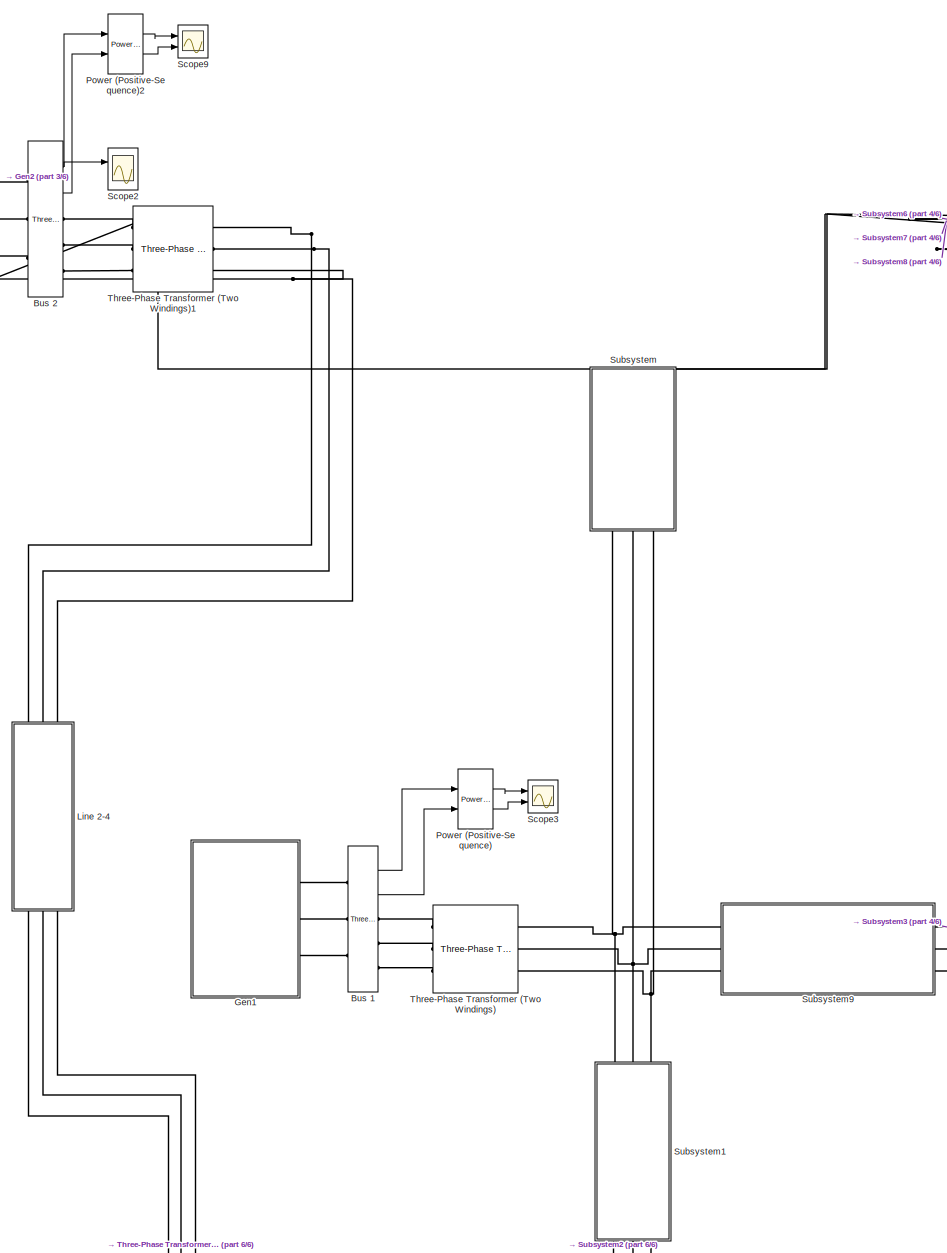
[diagram: root canvas - part 1/6, left side, full height]
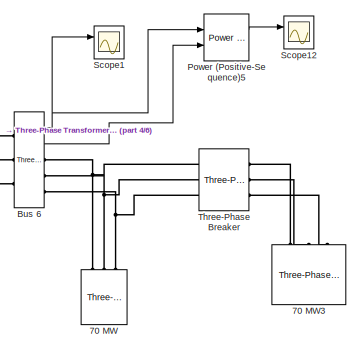
[diagram: root canvas - part 2/6, top right region]
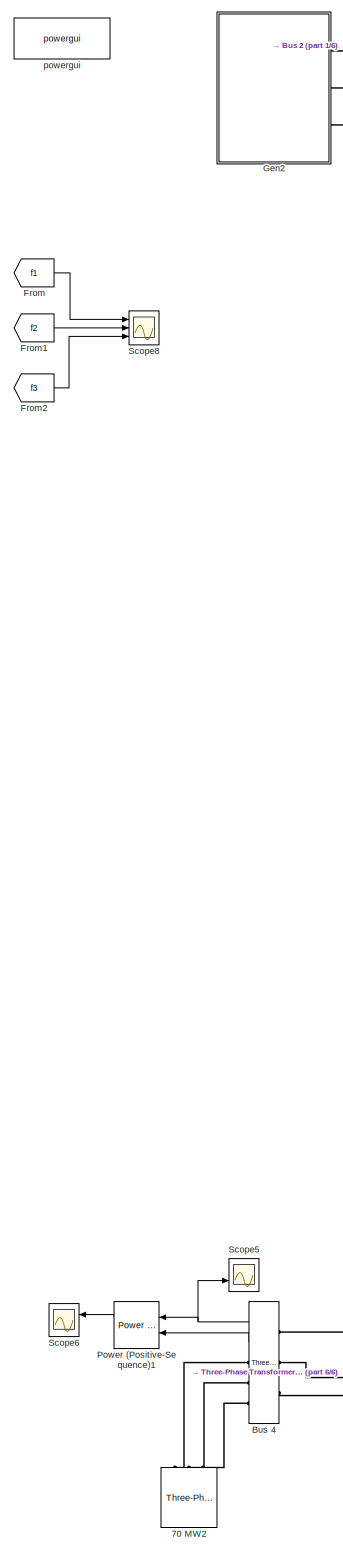
[diagram: root canvas - part 3/6, left side, full height]
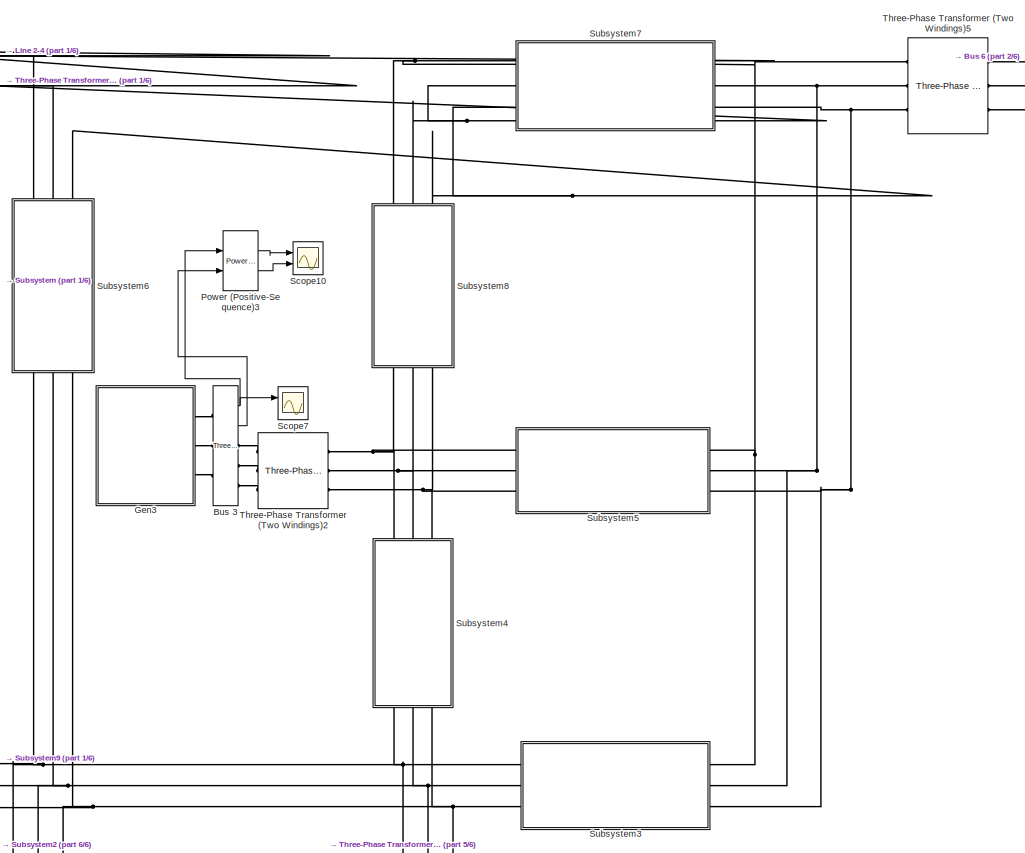
[diagram: root canvas - part 4/6, middle right region]
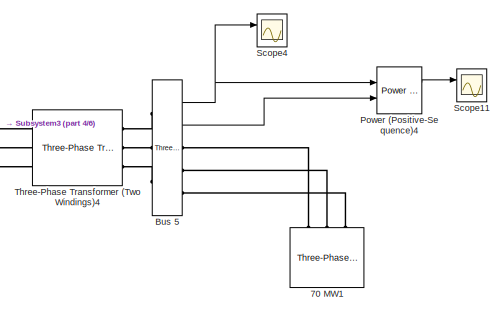
[diagram: root canvas - part 5/6, bottom right region]
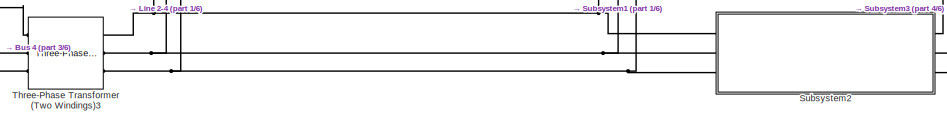
[diagram: root canvas - part 6/6, bottom left region]
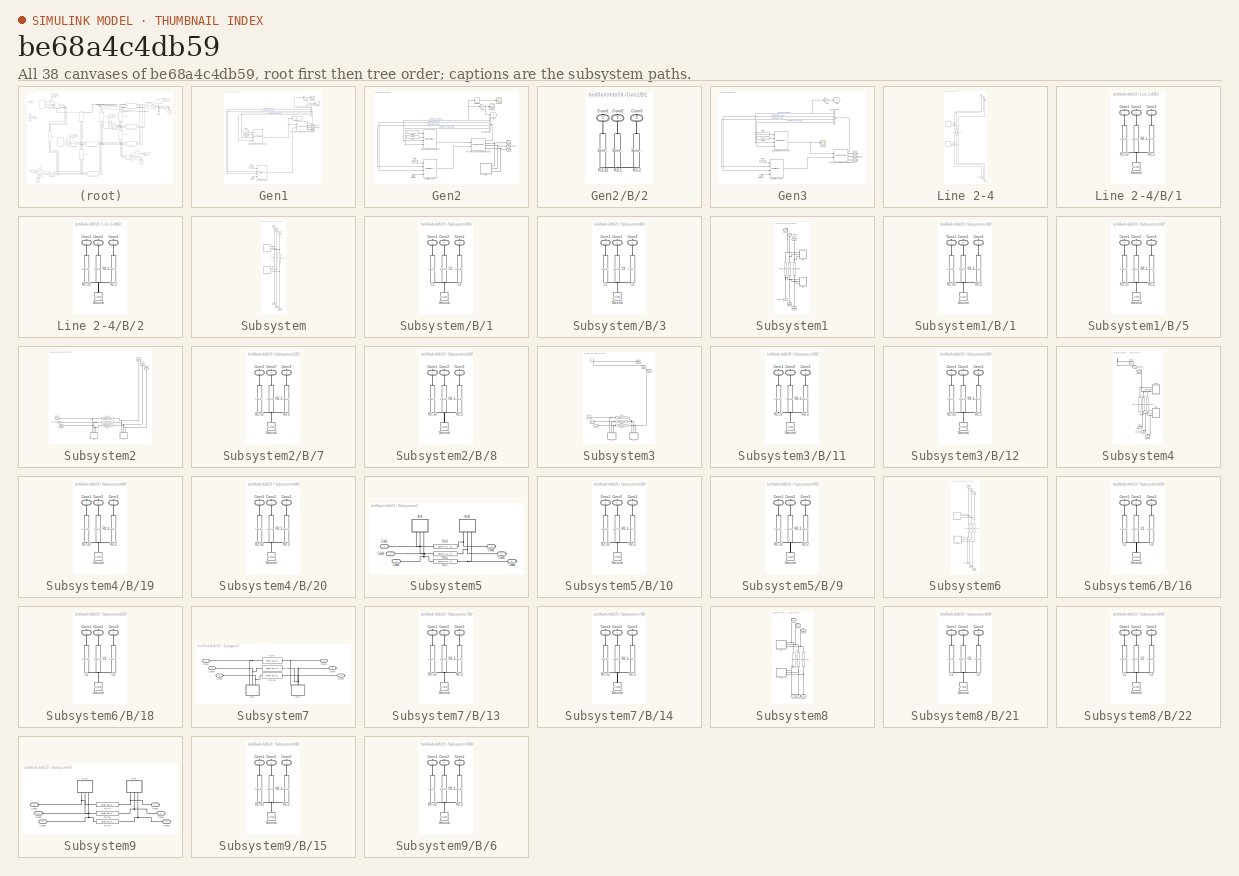
[diagram: thumbnail index - all 38 canvases of the model, root first then tree order]
MODEL slx_be68a4c4db59
KIND model
CONFIG AbsTol = auto
CONFIG FixedStep = auto
CONFIG MaxStep = auto
CONFIG MinStep = auto
CONFIG RelTol = 1e-3
CONFIG SampleTimeConstraint = Unconstrained
CONFIG Solver = VariableStepAuto
CONFIG SolverMode = Auto
CONFIG SolverName = VariableStepAuto
CONFIG StartTime = 0.0
CONFIG StopTime = 25
BLOCK [Reference] 70 MW  REF=powerlib/Elements/Three-Phase
Parallel RLC Load
  AttributesFormatString = \n
  Ports = [0, 0, 0, 0, 0, 3]
  SourceBlock = powerlib/Elements/Three-Phase\nParallel RLC Load
  SourceType = Three-Phase Parallel RLC Load
BLOCK [Reference] 70 MW1  REF=powerlib/Elements/Three-Phase
Parallel RLC Load
  AttributesFormatString = \n
  Ports = [0, 0, 0, 0, 0, 3]
  SourceBlock = powerlib/Elements/Three-Phase\nParallel RLC Load
  SourceType = Three-Phase Parallel RLC Load
BLOCK [Reference] 70 MW2  REF=powerlib/Elements/Three-Phase
Parallel RLC Load
  AttributesFormatString = \n
  Ports = [0, 0, 0, 0, 0, 3]
  SourceBlock = powerlib/Elements/Three-Phase\nParallel RLC Load
  SourceType = Three-Phase Parallel RLC Load
BLOCK [Reference] 70 MW3  REF=powerlib/Elements/Three-Phase
Parallel RLC Load
  AttributesFormatString = \n
  Ports = [0, 0, 0, 0, 0, 3]
  SourceBlock = powerlib/Elements/Three-Phase\nParallel RLC Load
  SourceType = Three-Phase Parallel RLC Load
BLOCK [Reference] Bus 1  REF=powerlib/Measurements/Three-Phase
V-I Measurement
  Ports = [0, 2, 0, 0, 0, 3, 3]
  SourceBlock = powerlib/Measurements/Three-Phase\nV-I Measurement
  SourceType = Three-Phase VI Measurement
BLOCK [Reference] Bus 2  REF=powerlib/Measurements/Three-Phase
V-I Measurement
  Ports = [0, 2, 0, 0, 0, 3, 3]
  SourceBlock = powerlib/Measurements/Three-Phase\nV-I Measurement
  SourceType = Three-Phase VI Measurement
BLOCK [Reference] Bus 3  REF=powerlib/Measurements/Three-Phase
V-I Measurement
  Ports = [0, 2, 0, 0, 0, 3, 3]
  SourceBlock = powerlib/Measurements/Three-Phase\nV-I Measurement
  SourceType = Three-Phase VI Measurement
BLOCK [Reference] Bus 4  REF=powerlib/Measurements/Three-Phase
V-I Measurement
  Ports = [0, 2, 0, 0, 0, 3, 3]
  SourceBlock = powerlib/Measurements/Three-Phase\nV-I Measurement
  SourceType = Three-Phase VI Measurement
BLOCK [Reference] Bus 5  REF=powerlib/Measurements/Three-Phase
V-I Measurement
  Ports = [0, 2, 0, 0, 0, 3, 3]
  SourceBlock = powerlib/Measurements/Three-Phase\nV-I Measurement
  SourceType = Three-Phase VI Measurement
BLOCK [Reference] Bus 6  REF=powerlib/Measurements/Three-Phase
V-I Measurement
  Ports = [0, 2, 0, 0, 0, 3, 3]
  SourceBlock = powerlib/Measurements/Three-Phase\nV-I Measurement
  SourceType = Three-Phase VI Measurement
BLOCK [From] From
  GotoTag = f1
  TagVisibility = global
BLOCK [From] From1
  GotoTag = f2
  TagVisibility = global
BLOCK [From] From2
  GotoTag = f3
  TagVisibility = global
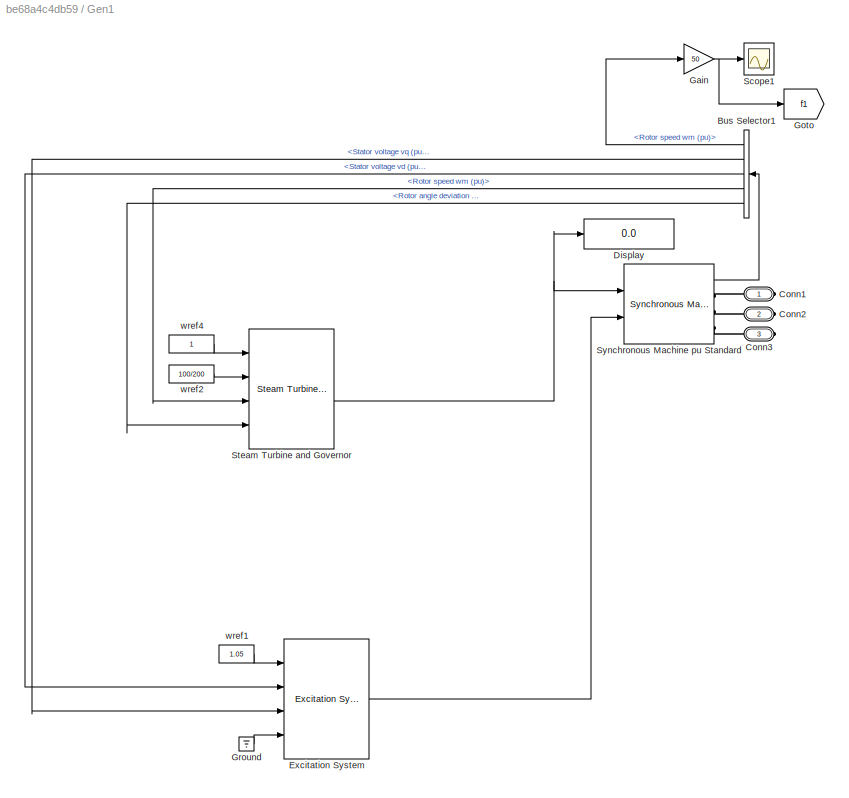
BLOCK [SubSystem] Gen1
  Ports = [0, 0, 0, 0, 0, 0, 3]
  RequestExecContextInheritance = off
  Variant = off
BLOCK [BusSelector] Gen1/Bus Selector1
  OutputSignals = Mechanical.Rotor speed  wm  (pu),dq0 components.Stator voltage  vq (pu),dq0 components.Stator voltage  vd (pu),Mechanical.Rotor speed  wm  (pu),Mechanical.Rotor angle deviation  d_theta (rad)
  Ports = [1, 5]
BLOCK [PMIOPort] Gen1/Conn1
  Port = 1
  Side = Right
BLOCK [PMIOPort] Gen1/Conn2
  Port = 2
  Side = Right
BLOCK [PMIOPort] Gen1/Conn3
  Port = 3
  Side = Right
BLOCK [Display] Gen1/Display
  Decimation = 1
  Ports = [1]
BLOCK [Reference] Gen1/Excitation System  REF=sps_avr/Excitation System
  Ports = [4, 1]
  SourceBlock = sps_avr/Excitation System
  SourceType = Excitation System
BLOCK [Gain] Gen1/Gain
  Gain = 50
  OutDataTypeStr = Inherit: Inherit via internal rule
  ParamDataTypeStr = Inherit: Inherit via internal rule
  SaturateOnIntegerOverflow = off
BLOCK [Goto] Gen1/Goto
  GotoTag = f1
  TagVisibility = global
BLOCK [Ground] Gen1/Ground
BLOCK [Scope] Gen1/Scope1
  Ports = [1]
  ScopeSpecificationString = Simulink.scopes.TimeScopeBlockCfg('CurrentConfiguration', extmgr.ConfigurationSet(extmgr.Configuration('Core','General UI',true),extmgr.Configuration('Core','Source UI',true),extmgr.Configuration('Sources','WiredSimulink',true,'DataLoggingVariableName','ScopeData1'),extmgr.Configuration('Visuals','Time Domain',true,'SerializedDisplays',{struct('MinYLimReal','49.82307','MaxYLimReal','50.14472','YLa...<+1440ch>
BLOCK [Reference] Gen1/Steam Turbine and Governor  REF=powerlib/Machines/Steam Turbine
and Governor
  Ports = [4, 4]
  SourceBlock = powerlib/Machines/Steam Turbine\nand Governor
  SourceType = Steam Turbine and Governor
BLOCK [Reference] Gen1/Synchronous Machine pu Standard  REF=powerlib/Machines/Synchronous Machine
pu Standard
  Ports = [2, 1, 0, 0, 0, 0, 3]
  SourceBlock = powerlib/Machines/Synchronous Machine\npu Standard
  SourceType = Synchronous Machine
BLOCK [Constant] Gen1/wref1
  Value = 1.05
BLOCK [Constant] Gen1/wref2
  Value = 100/200
BLOCK [Constant] Gen1/wref4
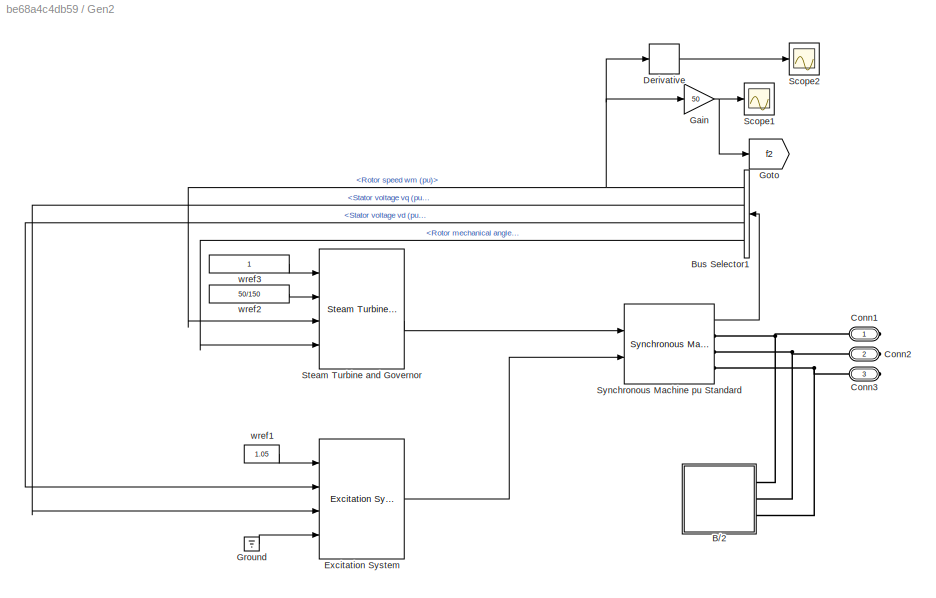
BLOCK [SubSystem] Gen2
  Ports = [0, 0, 0, 0, 0, 0, 3]
  RequestExecContextInheritance = off
  Variant = off
BLOCK [SubSystem] Gen2/B//2
  Ports = [0, 0, 0, 0, 0, 0, 3]
  RequestExecContextInheritance = off
  Variant = off
BLOCK [PMIOPort] Gen2/B//2/Conn1
  Port = 1
  Side = Right
BLOCK [PMIOPort] Gen2/B//2/Conn2
  Port = 2
  Side = Right
BLOCK [PMIOPort] Gen2/B//2/Conn3
  Port = 3
  Side = Right
BLOCK [Reference] Gen2/B//2/R2-1  REF=powerlib/Elements/Series RLC Branch
  Ports = [0, 0, 0, 0, 0, 1, 1]
  SourceBlock = powerlib/Elements/Series RLC Branch
  SourceType = Series RLC Branch
BLOCK [Reference] Gen2/B//2/R2-2  REF=powerlib/Elements/Series RLC Branch
  Ports = [0, 0, 0, 0, 0, 1, 1]
  SourceBlock = powerlib/Elements/Series RLC Branch
  SourceType = Series RLC Branch
BLOCK [Reference] Gen2/B//2/R2-32  REF=powerlib/Elements/Series RLC Branch
  Ports = [0, 0, 0, 0, 0, 1, 1]
  SourceBlock = powerlib/Elements/Series RLC Branch
  SourceType = Series RLC Branch
BLOCK [BusSelector] Gen2/Bus Selector1
  OutputSignals = Mechanical.Rotor speed  wm  (pu),dq0 components.Stator voltage  vq (pu),dq0 components.Stator voltage  vd (pu),Mechanical.Rotor mechanical angle  theta (deg)
  Ports = [1, 4]
BLOCK [PMIOPort] Gen2/Conn1
  Port = 1
  Side = Right
BLOCK [PMIOPort] Gen2/Conn2
  Port = 2
  Side = Right
BLOCK [PMIOPort] Gen2/Conn3
  Port = 3
  Side = Right
BLOCK [Derivative] Gen2/Derivative
BLOCK [Reference] Gen2/Excitation System  REF=sps_avr/Excitation System
  Ports = [4, 1]
  SourceBlock = sps_avr/Excitation System
  SourceType = Excitation System
BLOCK [Gain] Gen2/Gain
  Gain = 50
  OutDataTypeStr = Inherit: Inherit via internal rule
  ParamDataTypeStr = Inherit: Inherit via internal rule
  SaturateOnIntegerOverflow = off
BLOCK [Goto] Gen2/Goto
  GotoTag = f2
  TagVisibility = global
BLOCK [Ground] Gen2/Ground
BLOCK [Scope] Gen2/Scope1
  Ports = [1]
  ScopeSpecificationString = Simulink.scopes.TimeScopeBlockCfg('CurrentConfiguration', extmgr.ConfigurationSet(extmgr.Configuration('Core','General UI',true),extmgr.Configuration('Core','Source UI',true),extmgr.Configuration('Sources','WiredSimulink',true,'DataLoggingVariableName','ScopeData1'),extmgr.Configuration('Visuals','Time Domain',true,'SerializedDisplays',{struct('MinYLimReal','49.87307','MaxYLimReal','50.01434','YLa...<+1440ch>
BLOCK [Scope] Gen2/Scope2
  Ports = [1]
  ScopeSpecificationString = Simulink.scopes.TimeScopeBlockCfg('CurrentConfiguration', extmgr.ConfigurationSet(extmgr.Configuration('Core','General UI',true),extmgr.Configuration('Core','Source UI',true),extmgr.Configuration('Sources','WiredSimulink',true,'DataLoggingVariableName','ScopeData4'),extmgr.Configuration('Visuals','Time Domain',true,'SerializedDisplays',{struct('MinYLimReal','-0.49376','MaxYLimReal','0.45998','YLab...<+1443ch>
BLOCK [Reference] Gen2/Steam Turbine and Governor  REF=powerlib/Machines/Steam Turbine
and Governor
  Ports = [4, 4]
  SourceBlock = powerlib/Machines/Steam Turbine\nand Governor
  SourceType = Steam Turbine and Governor
BLOCK [Reference] Gen2/Synchronous Machine pu Standard  REF=powerlib/Machines/Synchronous Machine
pu Standard
  Ports = [2, 1, 0, 0, 0, 0, 3]
  SourceBlock = powerlib/Machines/Synchronous Machine\npu Standard
  SourceType = Synchronous Machine
BLOCK [Constant] Gen2/wref1
  Value = 1.05
BLOCK [Constant] Gen2/wref2
  Value = 50/150
BLOCK [Constant] Gen2/wref3
BLOCK [SubSystem] Gen3
  Ports = [0, 0, 0, 0, 0, 0, 3]
  RequestExecContextInheritance = off
  Variant = off
BLOCK [BusSelector] Gen3/Bus Selector1
  OutputSignals = Mechanical.Rotor speed  wm  (pu),dq0 components.Stator voltage  vq (pu),dq0 components.Stator voltage  vd (pu),Mechanical.Rotor mechanical angle  theta (deg)
  Ports = [1, 4]
BLOCK [PMIOPort] Gen3/Conn1
  Port = 1
  Side = Right
BLOCK [PMIOPort] Gen3/Conn2
  Port = 2
  Side = Right
BLOCK [PMIOPort] Gen3/Conn3
  Port = 3
  Side = Right
BLOCK [Reference] Gen3/Excitation System  REF=sps_avr/Excitation System
  Ports = [4, 1]
  SourceBlock = sps_avr/Excitation System
  SourceType = Excitation System
BLOCK [Gain] Gen3/Gain
  Gain = 50
  OutDataTypeStr = Inherit: Inherit via internal rule
  ParamDataTypeStr = Inherit: Inherit via internal rule
  SaturateOnIntegerOverflow = off
BLOCK [Goto] Gen3/Goto
  GotoTag = f3
  TagVisibility = global
BLOCK [Ground] Gen3/Ground
BLOCK [Scope] Gen3/Scope3
  Ports = [1]
  ScopeSpecificationString = C++SS(StrPVP('SaveName','ScopeData1'),StrPVP('LimitDataPoints','on'),StrPVP('DataFormat','Array'),StrPVP('Decimation','1'),StrPVP('BlockParamSampleInput','off'))
BLOCK [Reference] Gen3/Steam Turbine and Governor  REF=powerlib/Machines/Steam Turbine
and Governor
  Ports = [4, 4]
  SourceBlock = powerlib/Machines/Steam Turbine\nand Governor
  SourceType = Steam Turbine and Governor
BLOCK [Reference] Gen3/Synchronous Machine pu Standard  REF=powerlib/Machines/Synchronous Machine
pu Standard
  Ports = [2, 1, 0, 0, 0, 0, 3]
  SourceBlock = powerlib/Machines/Synchronous Machine\npu Standard
  SourceType = Synchronous Machine
BLOCK [Constant] Gen3/wref1
  Value = 1.07
BLOCK [Constant] Gen3/wref2
  Value = 61/180
BLOCK [Constant] Gen3/wref3
BLOCK [SubSystem] Line 2-4
  Ports = [0, 0, 0, 0, 0, 3, 3]
  RequestExecContextInheritance = off
  Variant = off
BLOCK [SubSystem] Line 2-4/B//1
  Ports = [0, 0, 0, 0, 0, 0, 3]
  RequestExecContextInheritance = off
  Variant = off
BLOCK [PMIOPort] Line 2-4/B//1/Conn1
  Port = 1
  Side = Right
BLOCK [PMIOPort] Line 2-4/B//1/Conn2
  Port = 2
  Side = Right
BLOCK [PMIOPort] Line 2-4/B//1/Conn3
  Port = 3
  Side = Right
BLOCK [Reference] Line 2-4/B//1/Ground  REF=powerlib/Elements/Ground
  Ports = [0, 0, 0, 0, 0, 1]
  SourceBlock = powerlib/Elements/Ground
  SourceType = Ground
BLOCK [Reference] Line 2-4/B//1/R2-1  REF=powerlib/Elements/Series RLC Branch
  Ports = [0, 0, 0, 0, 0, 1, 1]
  SourceBlock = powerlib/Elements/Series RLC Branch
  SourceType = Series RLC Branch
BLOCK [Reference] Line 2-4/B//1/R2-2  REF=powerlib/Elements/Series RLC Branch
  Ports = [0, 0, 0, 0, 0, 1, 1]
  SourceBlock = powerlib/Elements/Series RLC Branch
  SourceType = Series RLC Branch
BLOCK [Reference] Line 2-4/B//1/R2-32  REF=powerlib/Elements/Series RLC Branch
  Ports = [0, 0, 0, 0, 0, 1, 1]
  SourceBlock = powerlib/Elements/Series RLC Branch
  SourceType = Series RLC Branch
BLOCK [SubSystem] Line 2-4/B//2
  Ports = [0, 0, 0, 0, 0, 0, 3]
  RequestExecContextInheritance = off
  Variant = off
BLOCK [PMIOPort] Line 2-4/B//2/Conn1
  Port = 1
  Side = Right
BLOCK [PMIOPort] Line 2-4/B//2/Conn2
  Port = 2
  Side = Right
BLOCK [PMIOPort] Line 2-4/B//2/Conn3
  Port = 3
  Side = Right
BLOCK [Reference] Line 2-4/B//2/Ground  REF=powerlib/Elements/Ground
  Ports = [0, 0, 0, 0, 0, 1]
  SourceBlock = powerlib/Elements/Ground
  SourceType = Ground
BLOCK [Reference] Line 2-4/B//2/R2-1  REF=powerlib/Elements/Series RLC Branch
  Ports = [0, 0, 0, 0, 0, 1, 1]
  SourceBlock = powerlib/Elements/Series RLC Branch
  SourceType = Series RLC Branch
BLOCK [Reference] Line 2-4/B//2/R2-2  REF=powerlib/Elements/Series RLC Branch
  Ports = [0, 0, 0, 0, 0, 1, 1]
  SourceBlock = powerlib/Elements/Series RLC Branch
  SourceType = Series RLC Branch
BLOCK [Reference] Line 2-4/B//2/R2-32  REF=powerlib/Elements/Series RLC Branch
  Ports = [0, 0, 0, 0, 0, 1, 1]
  SourceBlock = powerlib/Elements/Series RLC Branch
  SourceType = Series RLC Branch
BLOCK [PMIOPort] Line 2-4/Conn1
  Port = 1
  Side = Right
BLOCK [PMIOPort] Line 2-4/Conn2
  Port = 2
  Side = Right
BLOCK [PMIOPort] Line 2-4/Conn3
  Port = 3
  Side = Right
BLOCK [PMIOPort] Line 2-4/Conn4
  Port = 4
  Side = Left
BLOCK [PMIOPort] Line 2-4/Conn5
  Port = 5
  Side = Left
BLOCK [PMIOPort] Line 2-4/Conn6
  Port = 6
  Side = Left
BLOCK [Reference] Line 2-4/R2-20  REF=powerlib/Elements/Series RLC Branch
  Ports = [0, 0, 0, 0, 0, 1, 1]
  SourceBlock = powerlib/Elements/Series RLC Branch
  SourceType = Series RLC Branch
BLOCK [Reference] Line 2-4/R2-22  REF=powerlib/Elements/Series RLC Branch
  Ports = [0, 0, 0, 0, 0, 1, 1]
  SourceBlock = powerlib/Elements/Series RLC Branch
  SourceType = Series RLC Branch
BLOCK [Reference] Line 2-4/R2-3  REF=powerlib/Elements/Series RLC Branch
  Ports = [0, 0, 0, 0, 0, 1, 1]
  SourceBlock = powerlib/Elements/Series RLC Branch
  SourceType = Series RLC Branch
BLOCK [Reference] Power (Positive-Sequence)  REF=powerlib_meascontrol/Measurements/Power
(Positive-Sequence)
  Ports = [2, 2]
  SourceBlock = powerlib_meascontrol/Measurements/Power\n(Positive-Sequence)
  SourceType = Power (Positive-Sequence)
BLOCK [Reference] Power (Positive-Sequence)1  REF=powerlib_meascontrol/Measurements/Power
(Positive-Sequence)
  Ports = [2, 2]
  SourceBlock = powerlib_meascontrol/Measurements/Power\n(Positive-Sequence)
  SourceType = Power (Positive-Sequence)
BLOCK [Reference] Power (Positive-Sequence)2  REF=powerlib_meascontrol/Measurements/Power
(Positive-Sequence)
  Ports = [2, 2]
  SourceBlock = powerlib_meascontrol/Measurements/Power\n(Positive-Sequence)
  SourceType = Power (Positive-Sequence)
BLOCK [Reference] Power (Positive-Sequence)3  REF=powerlib_meascontrol/Measurements/Power
(Positive-Sequence)
  Ports = [2, 2]
  SourceBlock = powerlib_meascontrol/Measurements/Power\n(Positive-Sequence)
  SourceType = Power (Positive-Sequence)
BLOCK [Reference] Power (Positive-Sequence)4  REF=powerlib_meascontrol/Measurements/Power
(Positive-Sequence)
  Ports = [2, 2]
  SourceBlock = powerlib_meascontrol/Measurements/Power\n(Positive-Sequence)
  SourceType = Power (Positive-Sequence)
BLOCK [Reference] Power (Positive-Sequence)5  REF=powerlib_meascontrol/Measurements/Power
(Positive-Sequence)
  Ports = [2, 2]
  SourceBlock = powerlib_meascontrol/Measurements/Power\n(Positive-Sequence)
  SourceType = Power (Positive-Sequence)
BLOCK [Scope] Scope1
  NumInputPorts = 2
  Ports = [2]
  ScopeSpecificationString = Simulink.scopes.TimeScopeBlockCfg('CurrentConfiguration', extmgr.ConfigurationSet(extmgr.Configuration('Core','General UI',true),extmgr.Configuration('Core','Source UI',true),extmgr.Configuration('Sources','WiredSimulink',true,'DataLoggingVariableName','ScopeData2'),extmgr.Configuration('Visuals','Time Domain',true,'SerializedDisplays',{struct('MinYLimReal','564.75663','MaxYLimReal','565.56145','Y...<+1504ch>
BLOCK [Scope] Scope10
  NumInputPorts = 2
  Ports = [2]
  ScopeSpecificationString = Simulink.scopes.TimeScopeBlockCfg('CurrentConfiguration', extmgr.ConfigurationSet(extmgr.Configuration('Core','General UI',true),extmgr.Configuration('Core','Source UI',true),extmgr.Configuration('Sources','WiredSimulink',true,'DataLoggingVariableName','ScopeData3'),extmgr.Configuration('Visuals','Time Domain',true,'SerializedDisplays',{struct('MinYLimReal','59262442.80891','MaxYLimReal','61543647...<+1542ch>
BLOCK [Scope] Scope11
  NumInputPorts = 2
  Ports = [2]
  ScopeSpecificationString = Simulink.scopes.TimeScopeBlockCfg('CurrentConfiguration', extmgr.ConfigurationSet(extmgr.Configuration('Core','General UI',true),extmgr.Configuration('Core','Source UI',true),extmgr.Configuration('Sources','WiredSimulink',true,'DataLoggingVariableName','ScopeData4'),extmgr.Configuration('Visuals','Time Domain',true,'SerializedDisplays',{struct('MinYLimReal','60765076.70875','MaxYLimReal','77706058...<+1524ch>
BLOCK [Scope] Scope12
  NumInputPorts = 2
  Ports = [2]
  ScopeSpecificationString = Simulink.scopes.TimeScopeBlockCfg('CurrentConfiguration', extmgr.ConfigurationSet(extmgr.Configuration('Core','General UI',true),extmgr.Configuration('Core','Source UI',true),extmgr.Configuration('Sources','WiredSimulink',true,'DataLoggingVariableName','ScopeData5'),extmgr.Configuration('Visuals','Time Domain',true,'SerializedDisplays',{struct('MinYLimReal','-9457135.0495','MaxYLimReal','85114215....<+1518ch>
BLOCK [Scope] Scope2
  NumInputPorts = 2
  Ports = [2]
  ScopeSpecificationString = Simulink.scopes.TimeScopeBlockCfg('CurrentConfiguration', extmgr.ConfigurationSet(extmgr.Configuration('Core','General UI',true),extmgr.Configuration('Core','Source UI',true),extmgr.Configuration('Sources','WiredSimulink',true,'DataLoggingVariableName','ScopeData3'),extmgr.Configuration('Visuals','Time Domain',true,'SerializedDisplays',{struct('MinYLimReal','-758.22079','MaxYLimReal','771.04857','...<+1504ch>
BLOCK [Scope] Scope3
  NumInputPorts = 2
  Ports = [2]
  ScopeSpecificationString = Simulink.scopes.TimeScopeBlockCfg('CurrentConfiguration', extmgr.ConfigurationSet(extmgr.Configuration('Core','General UI',true),extmgr.Configuration('Core','Source UI',true),extmgr.Configuration('Sources','WiredSimulink',true,'DataLoggingVariableName','ScopeData1'),extmgr.Configuration('Visuals','Time Domain',true,'SerializedDisplays',{struct('MinYLimReal','94194186.42149','MaxYLimReal','11487266...<+1545ch>
BLOCK [Scope] Scope4
  NumInputPorts = 2
  Ports = [2]
  ScopeSpecificationString = Simulink.scopes.TimeScopeBlockCfg('CurrentConfiguration', extmgr.ConfigurationSet(extmgr.Configuration('Core','General UI',true),extmgr.Configuration('Core','Source UI',true),extmgr.Configuration('Sources','WiredSimulink',true,'DataLoggingVariableName','ScopeData1'),extmgr.Configuration('Visuals','Time Domain',true,'SerializedDisplays',{struct('MinYLimReal','538.08008','MaxYLimReal','567.10288','Y...<+1504ch>
BLOCK [Scope] Scope5
  NumInputPorts = 2
  Ports = [2]
  ScopeSpecificationString = Simulink.scopes.TimeScopeBlockCfg('CurrentConfiguration', extmgr.ConfigurationSet(extmgr.Configuration('Core','General UI',true),extmgr.Configuration('Core','Source UI',true),extmgr.Configuration('Sources','WiredSimulink',true,'DataLoggingVariableName','ScopeData2'),extmgr.Configuration('Visuals','Time Domain',true,'SerializedDisplays',{struct('MinYLimReal','-83536885.17963','MaxYLimReal','9281876...<+1542ch>
BLOCK [Scope] Scope6
  NumInputPorts = 2
  Ports = [2]
  ScopeSpecificationString = Simulink.scopes.TimeScopeBlockCfg('CurrentConfiguration', extmgr.ConfigurationSet(extmgr.Configuration('Core','General UI',true),extmgr.Configuration('Core','Source UI',true),extmgr.Configuration('Sources','WiredSimulink',true,'DataLoggingVariableName','ScopeData3'),extmgr.Configuration('Visuals','Time Domain',true,'SerializedDisplays',{struct('MinYLimReal','575.73292','MaxYLimReal','582.91808','Y...<+1486ch>
BLOCK [Scope] Scope7
  NumInputPorts = 2
  Ports = [2]
  ScopeSpecificationString = Simulink.scopes.TimeScopeBlockCfg('CurrentConfiguration', extmgr.ConfigurationSet(extmgr.Configuration('Core','General UI',true),extmgr.Configuration('Core','Source UI',true),extmgr.Configuration('Sources','WiredSimulink',true,'DataLoggingVariableName','ScopeData2'),extmgr.Configuration('Visuals','Time Domain',true,'SerializedDisplays',{struct('MinYLimReal','-678.94091','MaxYLimReal','685.78324','...<+1504ch>
BLOCK [Scope] Scope8
  NumInputPorts = 3
  Ports = [3]
  ScopeSpecificationString = Simulink.scopes.TimeScopeBlockCfg('CurrentConfiguration', extmgr.ConfigurationSet(extmgr.Configuration('Core','General UI',true),extmgr.Configuration('Core','Source UI',true),extmgr.Configuration('Sources','WiredSimulink',true,'DataLoggingVariableName','ScopeData1'),extmgr.Configuration('Visuals','Time Domain',true,'SerializedDisplays',{struct('MinYLimReal','49.75397','MaxYLimReal','49.90933','YLa...<+1787ch>
BLOCK [Scope] Scope9
  NumInputPorts = 2
  Ports = [2]
  ScopeSpecificationString = Simulink.scopes.TimeScopeBlockCfg('CurrentConfiguration', extmgr.ConfigurationSet(extmgr.Configuration('Core','General UI',true),extmgr.Configuration('Core','Source UI',true),extmgr.Configuration('Sources','WiredSimulink',true,'DataLoggingVariableName','ScopeData2'),extmgr.Configuration('Visuals','Time Domain',true,'SerializedDisplays',{struct('MinYLimReal','-8292052.78892','MaxYLimReal','74628475...<+1542ch>
BLOCK [SubSystem] Subsystem
  Ports = [0, 0, 0, 0, 0, 3, 3]
  RequestExecContextInheritance = off
  Variant = off
BLOCK [SubSystem] Subsystem/B//1
  Ports = [0, 0, 0, 0, 0, 0, 3]
  RequestExecContextInheritance = off
  Variant = off
BLOCK [Reference] Subsystem/B//1/C1  REF=powerlib/Elements/Series RLC Branch
  Ports = [0, 0, 0, 0, 0, 1, 1]
  SourceBlock = powerlib/Elements/Series RLC Branch
  SourceType = Series RLC Branch
BLOCK [Reference] Subsystem/B//1/C2  REF=powerlib/Elements/Series RLC Branch
  Ports = [0, 0, 0, 0, 0, 1, 1]
  SourceBlock = powerlib/Elements/Series RLC Branch
  SourceType = Series RLC Branch
BLOCK [Reference] Subsystem/B//1/C3  REF=powerlib/Elements/Series RLC Branch
  Ports = [0, 0, 0, 0, 0, 1, 1]
  SourceBlock = powerlib/Elements/Series RLC Branch
  SourceType = Series RLC Branch
BLOCK [PMIOPort] Subsystem/B//1/Conn1
  Port = 1
  Side = Right
BLOCK [PMIOPort] Subsystem/B//1/Conn2
  Port = 2
  Side = Right
BLOCK [PMIOPort] Subsystem/B//1/Conn3
  Port = 3
  Side = Right
BLOCK [Reference] Subsystem/B//1/Ground  REF=powerlib/Elements/Ground
  Ports = [0, 0, 0, 0, 0, 1]
  SourceBlock = powerlib/Elements/Ground
  SourceType = Ground
BLOCK [SubSystem] Subsystem/B//3
  Ports = [0, 0, 0, 0, 0, 0, 3]
  RequestExecContextInheritance = off
  Variant = off
BLOCK [Reference] Subsystem/B//3/C1  REF=powerlib/Elements/Series RLC Branch
  Ports = [0, 0, 0, 0, 0, 1, 1]
  SourceBlock = powerlib/Elements/Series RLC Branch
  SourceType = Series RLC Branch
BLOCK [Reference] Subsystem/B//3/C2  REF=powerlib/Elements/Series RLC Branch
  Ports = [0, 0, 0, 0, 0, 1, 1]
  SourceBlock = powerlib/Elements/Series RLC Branch
  SourceType = Series RLC Branch
BLOCK [Reference] Subsystem/B//3/C3  REF=powerlib/Elements/Series RLC Branch
  Ports = [0, 0, 0, 0, 0, 1, 1]
  SourceBlock = powerlib/Elements/Series RLC Branch
  SourceType = Series RLC Branch
BLOCK [PMIOPort] Subsystem/B//3/Conn1
  Port = 1
  Side = Right
BLOCK [PMIOPort] Subsystem/B//3/Conn2
  Port = 2
  Side = Right
BLOCK [PMIOPort] Subsystem/B//3/Conn3
  Port = 3
  Side = Right
BLOCK [Reference] Subsystem/B//3/Ground  REF=powerlib/Elements/Ground
  Ports = [0, 0, 0, 0, 0, 1]
  SourceBlock = powerlib/Elements/Ground
  SourceType = Ground
BLOCK [PMIOPort] Subsystem/Conn1
  Port = 1
  Side = Right
BLOCK [PMIOPort] Subsystem/Conn2
  Port = 2
  Side = Right
BLOCK [PMIOPort] Subsystem/Conn3
  Port = 3
  Side = Right
BLOCK [PMIOPort] Subsystem/Conn4
  Port = 4
  Side = Left
BLOCK [PMIOPort] Subsystem/Conn5
  Port = 5
  Side = Left
BLOCK [PMIOPort] Subsystem/Conn6
  Port = 6
  Side = Left
BLOCK [Reference] Subsystem/L1-2   REF=powerlib/Elements/Series RLC Branch
  Ports = [0, 0, 0, 0, 0, 1, 1]
  SourceBlock = powerlib/Elements/Series RLC Branch
  SourceType = Series RLC Branch
BLOCK [Reference] Subsystem/L1-2 (2)  REF=powerlib/Elements/Series RLC Branch
  Ports = [0, 0, 0, 0, 0, 1, 1]
  SourceBlock = powerlib/Elements/Series RLC Branch
  SourceType = Series RLC Branch
BLOCK [Reference] Subsystem/L1-2(3)  REF=powerlib/Elements/Series RLC Branch
  Ports = [0, 0, 0, 0, 0, 1, 1]
  SourceBlock = powerlib/Elements/Series RLC Branch
  SourceType = Series RLC Branch
BLOCK [SubSystem] Subsystem1
  Ports = [0, 0, 0, 0, 0, 3, 3]
  RequestExecContextInheritance = off
  Variant = off
BLOCK [SubSystem] Subsystem1/B//1
  Ports = [0, 0, 0, 0, 0, 0, 3]
  RequestExecContextInheritance = off
  Variant = off
BLOCK [PMIOPort] Subsystem1/B//1/Conn1
  Port = 1
  Side = Right
BLOCK [PMIOPort] Subsystem1/B//1/Conn2
  Port = 2
  Side = Right
BLOCK [PMIOPort] Subsystem1/B//1/Conn3
  Port = 3
  Side = Right
BLOCK [Reference] Subsystem1/B//1/Ground  REF=powerlib/Elements/Ground
  Ports = [0, 0, 0, 0, 0, 1]
  SourceBlock = powerlib/Elements/Ground
  SourceType = Ground
BLOCK [Reference] Subsystem1/B//1/R2-1  REF=powerlib/Elements/Series RLC Branch
  Ports = [0, 0, 0, 0, 0, 1, 1]
  SourceBlock = powerlib/Elements/Series RLC Branch
  SourceType = Series RLC Branch
BLOCK [Reference] Subsystem1/B//1/R2-2  REF=powerlib/Elements/Series RLC Branch
  Ports = [0, 0, 0, 0, 0, 1, 1]
  SourceBlock = powerlib/Elements/Series RLC Branch
  SourceType = Series RLC Branch
BLOCK [Reference] Subsystem1/B//1/R2-32  REF=powerlib/Elements/Series RLC Branch
  Ports = [0, 0, 0, 0, 0, 1, 1]
  SourceBlock = powerlib/Elements/Series RLC Branch
  SourceType = Series RLC Branch
BLOCK [SubSystem] Subsystem1/B//5
  Ports = [0, 0, 0, 0, 0, 0, 3]
  RequestExecContextInheritance = off
  Variant = off
BLOCK [PMIOPort] Subsystem1/B//5/Conn1
  Port = 1
  Side = Right
BLOCK [PMIOPort] Subsystem1/B//5/Conn2
  Port = 2
  Side = Right
BLOCK [PMIOPort] Subsystem1/B//5/Conn3
  Port = 3
  Side = Right
BLOCK [Reference] Subsystem1/B//5/Ground  REF=powerlib/Elements/Ground
  Ports = [0, 0, 0, 0, 0, 1]
  SourceBlock = powerlib/Elements/Ground
  SourceType = Ground
BLOCK [Reference] Subsystem1/B//5/R2-1  REF=powerlib/Elements/Series RLC Branch
  Ports = [0, 0, 0, 0, 0, 1, 1]
  SourceBlock = powerlib/Elements/Series RLC Branch
  SourceType = Series RLC Branch
BLOCK [Reference] Subsystem1/B//5/R2-2  REF=powerlib/Elements/Series RLC Branch
  Ports = [0, 0, 0, 0, 0, 1, 1]
  SourceBlock = powerlib/Elements/Series RLC Branch
  SourceType = Series RLC Branch
BLOCK [Reference] Subsystem1/B//5/R2-32  REF=powerlib/Elements/Series RLC Branch
  Ports = [0, 0, 0, 0, 0, 1, 1]
  SourceBlock = powerlib/Elements/Series RLC Branch
  SourceType = Series RLC Branch
BLOCK [PMIOPort] Subsystem1/Conn1
  Port = 1
  Side = Right
BLOCK [PMIOPort] Subsystem1/Conn2
  Port = 2
  Side = Right
BLOCK [PMIOPort] Subsystem1/Conn3
  Port = 3
  Side = Right
BLOCK [PMIOPort] Subsystem1/Conn4
  Port = 4
  Side = Left
BLOCK [PMIOPort] Subsystem1/Conn5
  Port = 5
  Side = Left
BLOCK [PMIOPort] Subsystem1/Conn6
  Port = 6
  Side = Left
BLOCK [Reference] Subsystem1/R2-17  REF=powerlib/Elements/Series RLC Branch
  Ports = [0, 0, 0, 0, 0, 1, 1]
  SourceBlock = powerlib/Elements/Series RLC Branch
  SourceType = Series RLC Branch
BLOCK [Reference] Subsystem1/R2-18  REF=powerlib/Elements/Series RLC Branch
  Ports = [0, 0, 0, 0, 0, 1, 1]
  SourceBlock = powerlib/Elements/Series RLC Branch
  SourceType = Series RLC Branch
BLOCK [Reference] Subsystem1/R2-19  REF=powerlib/Elements/Series RLC Branch
  Ports = [0, 0, 0, 0, 0, 1, 1]
  SourceBlock = powerlib/Elements/Series RLC Branch
  SourceType = Series RLC Branch
BLOCK [SubSystem] Subsystem2
  Ports = [0, 0, 0, 0, 0, 3, 3]
  RequestExecContextInheritance = off
  Variant = off
BLOCK [SubSystem] Subsystem2/B//7
  Ports = [0, 0, 0, 0, 0, 0, 3]
  RequestExecContextInheritance = off
  Variant = off
BLOCK [PMIOPort] Subsystem2/B//7/Conn1
  Port = 1
  Side = Right
BLOCK [PMIOPort] Subsystem2/B//7/Conn2
  Port = 2
  Side = Right
BLOCK [PMIOPort] Subsystem2/B//7/Conn3
  Port = 3
  Side = Right
BLOCK [Reference] Subsystem2/B//7/Ground  REF=powerlib/Elements/Ground
  Ports = [0, 0, 0, 0, 0, 1]
  SourceBlock = powerlib/Elements/Ground
  SourceType = Ground
BLOCK [Reference] Subsystem2/B//7/R2-1  REF=powerlib/Elements/Series RLC Branch
  Ports = [0, 0, 0, 0, 0, 1, 1]
  SourceBlock = powerlib/Elements/Series RLC Branch
  SourceType = Series RLC Branch
BLOCK [Reference] Subsystem2/B//7/R2-2  REF=powerlib/Elements/Series RLC Branch
  Ports = [0, 0, 0, 0, 0, 1, 1]
  SourceBlock = powerlib/Elements/Series RLC Branch
  SourceType = Series RLC Branch
BLOCK [Reference] Subsystem2/B//7/R2-32  REF=powerlib/Elements/Series RLC Branch
  Ports = [0, 0, 0, 0, 0, 1, 1]
  SourceBlock = powerlib/Elements/Series RLC Branch
  SourceType = Series RLC Branch
BLOCK [SubSystem] Subsystem2/B//8
  Ports = [0, 0, 0, 0, 0, 0, 3]
  RequestExecContextInheritance = off
  Variant = off
BLOCK [PMIOPort] Subsystem2/B//8/Conn1
  Port = 1
  Side = Right
BLOCK [PMIOPort] Subsystem2/B//8/Conn2
  Port = 2
  Side = Right
BLOCK [PMIOPort] Subsystem2/B//8/Conn3
  Port = 3
  Side = Right
BLOCK [Reference] Subsystem2/B//8/Ground  REF=powerlib/Elements/Ground
  Ports = [0, 0, 0, 0, 0, 1]
  SourceBlock = powerlib/Elements/Ground
  SourceType = Ground
BLOCK [Reference] Subsystem2/B//8/R2-1  REF=powerlib/Elements/Series RLC Branch
  Ports = [0, 0, 0, 0, 0, 1, 1]
  SourceBlock = powerlib/Elements/Series RLC Branch
  SourceType = Series RLC Branch
BLOCK [Reference] Subsystem2/B//8/R2-2  REF=powerlib/Elements/Series RLC Branch
  Ports = [0, 0, 0, 0, 0, 1, 1]
  SourceBlock = powerlib/Elements/Series RLC Branch
  SourceType = Series RLC Branch
BLOCK [Reference] Subsystem2/B//8/R2-32  REF=powerlib/Elements/Series RLC Branch
  Ports = [0, 0, 0, 0, 0, 1, 1]
  SourceBlock = powerlib/Elements/Series RLC Branch
  SourceType = Series RLC Branch
BLOCK [PMIOPort] Subsystem2/Conn1
  Port = 1
  Side = Right
BLOCK [PMIOPort] Subsystem2/Conn2
  Port = 2
  Side = Right
BLOCK [PMIOPort] Subsystem2/Conn3
  Port = 3
  Side = Right
BLOCK [PMIOPort] Subsystem2/Conn4
  Port = 4
  Side = Left
BLOCK [PMIOPort] Subsystem2/Conn5
  Port = 5
  Side = Left
BLOCK [PMIOPort] Subsystem2/Conn6
  Port = 6
  Side = Left
BLOCK [Reference] Subsystem2/R2-21  REF=powerlib/Elements/Series RLC Branch
  Ports = [0, 0, 0, 0, 0, 1, 1]
  SourceBlock = powerlib/Elements/Series RLC Branch
  SourceType = Series RLC Branch
BLOCK [Reference] Subsystem2/R2-26  REF=powerlib/Elements/Series RLC Branch
  Ports = [0, 0, 0, 0, 0, 1, 1]
  SourceBlock = powerlib/Elements/Series RLC Branch
  SourceType = Series RLC Branch
BLOCK [Reference] Subsystem2/R2-27  REF=powerlib/Elements/Series RLC Branch
  Ports = [0, 0, 0, 0, 0, 1, 1]
  SourceBlock = powerlib/Elements/Series RLC Branch
  SourceType = Series RLC Branch
BLOCK [SubSystem] Subsystem3
  Ports = [0, 0, 0, 0, 0, 3, 3]
  RequestExecContextInheritance = off
  Variant = off
BLOCK [SubSystem] Subsystem3/B//11
  Ports = [0, 0, 0, 0, 0, 0, 3]
  RequestExecContextInheritance = off
  Variant = off
BLOCK [PMIOPort] Subsystem3/B//11/Conn1
  Port = 1
  Side = Right
BLOCK [PMIOPort] Subsystem3/B//11/Conn2
  Port = 2
  Side = Right
BLOCK [PMIOPort] Subsystem3/B//11/Conn3
  Port = 3
  Side = Right
BLOCK [Reference] Subsystem3/B//11/Ground  REF=powerlib/Elements/Ground
  Ports = [0, 0, 0, 0, 0, 1]
  SourceBlock = powerlib/Elements/Ground
  SourceType = Ground
BLOCK [Reference] Subsystem3/B//11/R2-1  REF=powerlib/Elements/Series RLC Branch
  Ports = [0, 0, 0, 0, 0, 1, 1]
  SourceBlock = powerlib/Elements/Series RLC Branch
  SourceType = Series RLC Branch
BLOCK [Reference] Subsystem3/B//11/R2-2  REF=powerlib/Elements/Series RLC Branch
  Ports = [0, 0, 0, 0, 0, 1, 1]
  SourceBlock = powerlib/Elements/Series RLC Branch
  SourceType = Series RLC Branch
BLOCK [Reference] Subsystem3/B//11/R2-32  REF=powerlib/Elements/Series RLC Branch
  Ports = [0, 0, 0, 0, 0, 1, 1]
  SourceBlock = powerlib/Elements/Series RLC Branch
  SourceType = Series RLC Branch
BLOCK [SubSystem] Subsystem3/B//12
  Ports = [0, 0, 0, 0, 0, 0, 3]
  RequestExecContextInheritance = off
  Variant = off
BLOCK [PMIOPort] Subsystem3/B//12/Conn1
  Port = 1
  Side = Right
BLOCK [PMIOPort] Subsystem3/B//12/Conn2
  Port = 2
  Side = Right
BLOCK [PMIOPort] Subsystem3/B//12/Conn3
  Port = 3
  Side = Right
BLOCK [Reference] Subsystem3/B//12/Ground  REF=powerlib/Elements/Ground
  Ports = [0, 0, 0, 0, 0, 1]
  SourceBlock = powerlib/Elements/Ground
  SourceType = Ground
BLOCK [Reference] Subsystem3/B//12/R2-1  REF=powerlib/Elements/Series RLC Branch
  Ports = [0, 0, 0, 0, 0, 1, 1]
  SourceBlock = powerlib/Elements/Series RLC Branch
  SourceType = Series RLC Branch
BLOCK [Reference] Subsystem3/B//12/R2-2  REF=powerlib/Elements/Series RLC Branch
  Ports = [0, 0, 0, 0, 0, 1, 1]
  SourceBlock = powerlib/Elements/Series RLC Branch
  SourceType = Series RLC Branch
BLOCK [Reference] Subsystem3/B//12/R2-32  REF=powerlib/Elements/Series RLC Branch
  Ports = [0, 0, 0, 0, 0, 1, 1]
  SourceBlock = powerlib/Elements/Series RLC Branch
  SourceType = Series RLC Branch
BLOCK [PMIOPort] Subsystem3/Conn1
  Port = 1
  Side = Right
BLOCK [PMIOPort] Subsystem3/Conn2
  Port = 2
  Side = Right
BLOCK [PMIOPort] Subsystem3/Conn3
  Port = 3
  Side = Right
BLOCK [PMIOPort] Subsystem3/Conn4
  Port = 4
  Side = Left
BLOCK [PMIOPort] Subsystem3/Conn5
  Port = 5
  Side = Left
BLOCK [PMIOPort] Subsystem3/Conn6
  Port = 6
  Side = Left
BLOCK [Reference] Subsystem3/R2-10  REF=powerlib/Elements/Series RLC Branch
  Ports = [0, 0, 0, 0, 0, 1, 1]
  SourceBlock = powerlib/Elements/Series RLC Branch
  SourceType = Series RLC Branch
BLOCK [Reference] Subsystem3/R2-8  REF=powerlib/Elements/Series RLC Branch
  Ports = [0, 0, 0, 0, 0, 1, 1]
  SourceBlock = powerlib/Elements/Series RLC Branch
  SourceType = Series RLC Branch
BLOCK [Reference] Subsystem3/R2-9  REF=powerlib/Elements/Series RLC Branch
  Ports = [0, 0, 0, 0, 0, 1, 1]
  SourceBlock = powerlib/Elements/Series RLC Branch
  SourceType = Series RLC Branch
BLOCK [SubSystem] Subsystem4
  Ports = [0, 0, 0, 0, 0, 3, 3]
  RequestExecContextInheritance = off
  Variant = off
BLOCK [SubSystem] Subsystem4/B//19
  Ports = [0, 0, 0, 0, 0, 0, 3]
  RequestExecContextInheritance = off
  Variant = off
BLOCK [PMIOPort] Subsystem4/B//19/Conn1
  Port = 1
  Side = Right
BLOCK [PMIOPort] Subsystem4/B//19/Conn2
  Port = 2
  Side = Right
BLOCK [PMIOPort] Subsystem4/B//19/Conn3
  Port = 3
  Side = Right
BLOCK [Reference] Subsystem4/B//19/Ground  REF=powerlib/Elements/Ground
  Ports = [0, 0, 0, 0, 0, 1]
  SourceBlock = powerlib/Elements/Ground
  SourceType = Ground
BLOCK [Reference] Subsystem4/B//19/R2-1  REF=powerlib/Elements/Series RLC Branch
  Ports = [0, 0, 0, 0, 0, 1, 1]
  SourceBlock = powerlib/Elements/Series RLC Branch
  SourceType = Series RLC Branch
BLOCK [Reference] Subsystem4/B//19/R2-2  REF=powerlib/Elements/Series RLC Branch
  Ports = [0, 0, 0, 0, 0, 1, 1]
  SourceBlock = powerlib/Elements/Series RLC Branch
  SourceType = Series RLC Branch
BLOCK [Reference] Subsystem4/B//19/R2-32  REF=powerlib/Elements/Series RLC Branch
  Ports = [0, 0, 0, 0, 0, 1, 1]
  SourceBlock = powerlib/Elements/Series RLC Branch
  SourceType = Series RLC Branch
BLOCK [SubSystem] Subsystem4/B//20
  Ports = [0, 0, 0, 0, 0, 0, 3]
  RequestExecContextInheritance = off
  Variant = off
BLOCK [PMIOPort] Subsystem4/B//20/Conn1
  Port = 1
  Side = Right
BLOCK [PMIOPort] Subsystem4/B//20/Conn2
  Port = 2
  Side = Right
BLOCK [PMIOPort] Subsystem4/B//20/Conn3
  Port = 3
  Side = Right
BLOCK [Reference] Subsystem4/B//20/Ground  REF=powerlib/Elements/Ground
  Ports = [0, 0, 0, 0, 0, 1]
  SourceBlock = powerlib/Elements/Ground
  SourceType = Ground
BLOCK [Reference] Subsystem4/B//20/R2-1  REF=powerlib/Elements/Series RLC Branch
  Ports = [0, 0, 0, 0, 0, 1, 1]
  SourceBlock = powerlib/Elements/Series RLC Branch
  SourceType = Series RLC Branch
BLOCK [Reference] Subsystem4/B//20/R2-2  REF=powerlib/Elements/Series RLC Branch
  Ports = [0, 0, 0, 0, 0, 1, 1]
  SourceBlock = powerlib/Elements/Series RLC Branch
  SourceType = Series RLC Branch
BLOCK [Reference] Subsystem4/B//20/R2-32  REF=powerlib/Elements/Series RLC Branch
  Ports = [0, 0, 0, 0, 0, 1, 1]
  SourceBlock = powerlib/Elements/Series RLC Branch
  SourceType = Series RLC Branch
BLOCK [PMIOPort] Subsystem4/Conn1
  Port = 1
  Side = Right
BLOCK [PMIOPort] Subsystem4/Conn2
  Port = 2
  Side = Right
BLOCK [PMIOPort] Subsystem4/Conn3
  Port = 3
  Side = Right
BLOCK [PMIOPort] Subsystem4/Conn4
  Port = 4
  Side = Left
BLOCK [PMIOPort] Subsystem4/Conn5
  Port = 5
  Side = Left
BLOCK [PMIOPort] Subsystem4/Conn6
  Port = 6
  Side = Left
BLOCK [Reference] Subsystem4/R2-11  REF=powerlib/Elements/Series RLC Branch
  Ports = [0, 0, 0, 0, 0, 1, 1]
  SourceBlock = powerlib/Elements/Series RLC Branch
  SourceType = Series RLC Branch
BLOCK [Reference] Subsystem4/R2-12  REF=powerlib/Elements/Series RLC Branch
  Ports = [0, 0, 0, 0, 0, 1, 1]
  SourceBlock = powerlib/Elements/Series RLC Branch
  SourceType = Series RLC Branch
BLOCK [Reference] Subsystem4/R2-13  REF=powerlib/Elements/Series RLC Branch
  Ports = [0, 0, 0, 0, 0, 1, 1]
  SourceBlock = powerlib/Elements/Series RLC Branch
  SourceType = Series RLC Branch
BLOCK [SubSystem] Subsystem5
  Ports = [0, 0, 0, 0, 0, 3, 3]
  RequestExecContextInheritance = off
  Variant = off
BLOCK [SubSystem] Subsystem5/B//10
  Ports = [0, 0, 0, 0, 0, 0, 3]
  RequestExecContextInheritance = off
  Variant = off
BLOCK [PMIOPort] Subsystem5/B//10/Conn1
  Port = 1
  Side = Right
BLOCK [PMIOPort] Subsystem5/B//10/Conn2
  Port = 2
  Side = Right
BLOCK [PMIOPort] Subsystem5/B//10/Conn3
  Port = 3
  Side = Right
BLOCK [Reference] Subsystem5/B//10/Ground  REF=powerlib/Elements/Ground
  Ports = [0, 0, 0, 0, 0, 1]
  SourceBlock = powerlib/Elements/Ground
  SourceType = Ground
BLOCK [Reference] Subsystem5/B//10/R2-1  REF=powerlib/Elements/Series RLC Branch
  Ports = [0, 0, 0, 0, 0, 1, 1]
  SourceBlock = powerlib/Elements/Series RLC Branch
  SourceType = Series RLC Branch
BLOCK [Reference] Subsystem5/B//10/R2-2  REF=powerlib/Elements/Series RLC Branch
  Ports = [0, 0, 0, 0, 0, 1, 1]
  SourceBlock = powerlib/Elements/Series RLC Branch
  SourceType = Series RLC Branch
BLOCK [Reference] Subsystem5/B//10/R2-32  REF=powerlib/Elements/Series RLC Branch
  Ports = [0, 0, 0, 0, 0, 1, 1]
  SourceBlock = powerlib/Elements/Series RLC Branch
  SourceType = Series RLC Branch
BLOCK [SubSystem] Subsystem5/B//9
  Ports = [0, 0, 0, 0, 0, 0, 3]
  RequestExecContextInheritance = off
  Variant = off
BLOCK [PMIOPort] Subsystem5/B//9/Conn1
  Port = 1
  Side = Right
BLOCK [PMIOPort] Subsystem5/B//9/Conn2
  Port = 2
  Side = Right
BLOCK [PMIOPort] Subsystem5/B//9/Conn3
  Port = 3
  Side = Right
BLOCK [Reference] Subsystem5/B//9/Ground  REF=powerlib/Elements/Ground
  Ports = [0, 0, 0, 0, 0, 1]
  SourceBlock = powerlib/Elements/Ground
  SourceType = Ground
BLOCK [Reference] Subsystem5/B//9/R2-1  REF=powerlib/Elements/Series RLC Branch
  Ports = [0, 0, 0, 0, 0, 1, 1]
  SourceBlock = powerlib/Elements/Series RLC Branch
  SourceType = Series RLC Branch
BLOCK [Reference] Subsystem5/B//9/R2-2  REF=powerlib/Elements/Series RLC Branch
  Ports = [0, 0, 0, 0, 0, 1, 1]
  SourceBlock = powerlib/Elements/Series RLC Branch
  SourceType = Series RLC Branch
BLOCK [Reference] Subsystem5/B//9/R2-32  REF=powerlib/Elements/Series RLC Branch
  Ports = [0, 0, 0, 0, 0, 1, 1]
  SourceBlock = powerlib/Elements/Series RLC Branch
  SourceType = Series RLC Branch
BLOCK [PMIOPort] Subsystem5/Conn1
  Port = 1
  Side = Left
BLOCK [PMIOPort] Subsystem5/Conn2
  Port = 2
  Side = Right
BLOCK [PMIOPort] Subsystem5/Conn3
  Port = 3
  Side = Left
BLOCK [PMIOPort] Subsystem5/Conn4
  Port = 4
  Side = Right
BLOCK [PMIOPort] Subsystem5/Conn5
  Port = 5
  Side = Left
BLOCK [PMIOPort] Subsystem5/Conn6
  Port = 6
  Side = Right
BLOCK [Reference] Subsystem5/R2-4  REF=powerlib/Elements/Series RLC Branch
  Ports = [0, 0, 0, 0, 0, 1, 1]
  SourceBlock = powerlib/Elements/Series RLC Branch
  SourceType = Series RLC Branch
BLOCK [Reference] Subsystem5/R2-5  REF=powerlib/Elements/Series RLC Branch
  Ports = [0, 0, 0, 0, 0, 1, 1]
  SourceBlock = powerlib/Elements/Series RLC Branch
  SourceType = Series RLC Branch
BLOCK [Reference] Subsystem5/R2-7  REF=powerlib/Elements/Series RLC Branch
  Ports = [0, 0, 0, 0, 0, 1, 1]
  SourceBlock = powerlib/Elements/Series RLC Branch
  SourceType = Series RLC Branch
BLOCK [SubSystem] Subsystem6
  Ports = [0, 0, 0, 0, 0, 3, 3]
  RequestExecContextInheritance = off
  Variant = off
BLOCK [SubSystem] Subsystem6/B//16
  Ports = [0, 0, 0, 0, 0, 0, 3]
  RequestExecContextInheritance = off
  Variant = off
BLOCK [Reference] Subsystem6/B//16/C1  REF=powerlib/Elements/Series RLC Branch
  Ports = [0, 0, 0, 0, 0, 1, 1]
  SourceBlock = powerlib/Elements/Series RLC Branch
  SourceType = Series RLC Branch
BLOCK [Reference] Subsystem6/B//16/C2  REF=powerlib/Elements/Series RLC Branch
  Ports = [0, 0, 0, 0, 0, 1, 1]
  SourceBlock = powerlib/Elements/Series RLC Branch
  SourceType = Series RLC Branch
BLOCK [Reference] Subsystem6/B//16/C3  REF=powerlib/Elements/Series RLC Branch
  Ports = [0, 0, 0, 0, 0, 1, 1]
  SourceBlock = powerlib/Elements/Series RLC Branch
  SourceType = Series RLC Branch
BLOCK [PMIOPort] Subsystem6/B//16/Conn1
  Port = 1
  Side = Right
BLOCK [PMIOPort] Subsystem6/B//16/Conn2
  Port = 2
  Side = Right
BLOCK [PMIOPort] Subsystem6/B//16/Conn3
  Port = 3
  Side = Right
BLOCK [Reference] Subsystem6/B//16/Ground  REF=powerlib/Elements/Ground
  Ports = [0, 0, 0, 0, 0, 1]
  SourceBlock = powerlib/Elements/Ground
  SourceType = Ground
BLOCK [SubSystem] Subsystem6/B//18
  Ports = [0, 0, 0, 0, 0, 0, 3]
  RequestExecContextInheritance = off
  Variant = off
BLOCK [Reference] Subsystem6/B//18/C1  REF=powerlib/Elements/Series RLC Branch
  Ports = [0, 0, 0, 0, 0, 1, 1]
  SourceBlock = powerlib/Elements/Series RLC Branch
  SourceType = Series RLC Branch
BLOCK [Reference] Subsystem6/B//18/C2  REF=powerlib/Elements/Series RLC Branch
  Ports = [0, 0, 0, 0, 0, 1, 1]
  SourceBlock = powerlib/Elements/Series RLC Branch
  SourceType = Series RLC Branch
BLOCK [Reference] Subsystem6/B//18/C3  REF=powerlib/Elements/Series RLC Branch
  Ports = [0, 0, 0, 0, 0, 1, 1]
  SourceBlock = powerlib/Elements/Series RLC Branch
  SourceType = Series RLC Branch
BLOCK [PMIOPort] Subsystem6/B//18/Conn1
  Port = 1
  Side = Right
BLOCK [PMIOPort] Subsystem6/B//18/Conn2
  Port = 2
  Side = Right
BLOCK [PMIOPort] Subsystem6/B//18/Conn3
  Port = 3
  Side = Right
BLOCK [Reference] Subsystem6/B//18/Ground  REF=powerlib/Elements/Ground
  Ports = [0, 0, 0, 0, 0, 1]
  SourceBlock = powerlib/Elements/Ground
  SourceType = Ground
BLOCK [PMIOPort] Subsystem6/Conn1
  Port = 1
  Side = Right
BLOCK [PMIOPort] Subsystem6/Conn2
  Port = 2
  Side = Right
BLOCK [PMIOPort] Subsystem6/Conn3
  Port = 3
  Side = Right
BLOCK [PMIOPort] Subsystem6/Conn4
  Port = 4
  Side = Left
BLOCK [PMIOPort] Subsystem6/Conn5
  Port = 5
  Side = Left
BLOCK [PMIOPort] Subsystem6/Conn6
  Port = 6
  Side = Left
BLOCK [Reference] Subsystem6/R2-23  REF=powerlib/Elements/Series RLC Branch
  Ports = [0, 0, 0, 0, 0, 1, 1]
  SourceBlock = powerlib/Elements/Series RLC Branch
  SourceType = Series RLC Branch
BLOCK [Reference] Subsystem6/R2-25  REF=powerlib/Elements/Series RLC Branch
  Ports = [0, 0, 0, 0, 0, 1, 1]
  SourceBlock = powerlib/Elements/Series RLC Branch
  SourceType = Series RLC Branch
BLOCK [Reference] Subsystem6/R2-29  REF=powerlib/Elements/Series RLC Branch
  Ports = [0, 0, 0, 0, 0, 1, 1]
  SourceBlock = powerlib/Elements/Series RLC Branch
  SourceType = Series RLC Branch
BLOCK [SubSystem] Subsystem7
  Ports = [0, 0, 0, 0, 0, 3, 3]
  RequestExecContextInheritance = off
  Variant = off
BLOCK [SubSystem] Subsystem7/B//13
  Ports = [0, 0, 0, 0, 0, 0, 3]
  RequestExecContextInheritance = off
  Variant = off
BLOCK [PMIOPort] Subsystem7/B//13/Conn1
  Port = 1
  Side = Right
BLOCK [PMIOPort] Subsystem7/B//13/Conn2
  Port = 2
  Side = Right
BLOCK [PMIOPort] Subsystem7/B//13/Conn3
  Port = 3
  Side = Right
BLOCK [Reference] Subsystem7/B//13/Ground  REF=powerlib/Elements/Ground
  Ports = [0, 0, 0, 0, 0, 1]
  SourceBlock = powerlib/Elements/Ground
  SourceType = Ground
BLOCK [Reference] Subsystem7/B//13/R2-1  REF=powerlib/Elements/Series RLC Branch
  Ports = [0, 0, 0, 0, 0, 1, 1]
  SourceBlock = powerlib/Elements/Series RLC Branch
  SourceType = Series RLC Branch
BLOCK [Reference] Subsystem7/B//13/R2-2  REF=powerlib/Elements/Series RLC Branch
  Ports = [0, 0, 0, 0, 0, 1, 1]
  SourceBlock = powerlib/Elements/Series RLC Branch
  SourceType = Series RLC Branch
BLOCK [Reference] Subsystem7/B//13/R2-32  REF=powerlib/Elements/Series RLC Branch
  Ports = [0, 0, 0, 0, 0, 1, 1]
  SourceBlock = powerlib/Elements/Series RLC Branch
  SourceType = Series RLC Branch
BLOCK [SubSystem] Subsystem7/B//14
  Ports = [0, 0, 0, 0, 0, 0, 3]
  RequestExecContextInheritance = off
  Variant = off
BLOCK [PMIOPort] Subsystem7/B//14/Conn1
  Port = 1
  Side = Right
BLOCK [PMIOPort] Subsystem7/B//14/Conn2
  Port = 2
  Side = Right
BLOCK [PMIOPort] Subsystem7/B//14/Conn3
  Port = 3
  Side = Right
BLOCK [Reference] Subsystem7/B//14/Ground  REF=powerlib/Elements/Ground
  Ports = [0, 0, 0, 0, 0, 1]
  SourceBlock = powerlib/Elements/Ground
  SourceType = Ground
BLOCK [Reference] Subsystem7/B//14/R2-1  REF=powerlib/Elements/Series RLC Branch
  Ports = [0, 0, 0, 0, 0, 1, 1]
  SourceBlock = powerlib/Elements/Series RLC Branch
  SourceType = Series RLC Branch
BLOCK [Reference] Subsystem7/B//14/R2-2  REF=powerlib/Elements/Series RLC Branch
  Ports = [0, 0, 0, 0, 0, 1, 1]
  SourceBlock = powerlib/Elements/Series RLC Branch
  SourceType = Series RLC Branch
BLOCK [Reference] Subsystem7/B//14/R2-32  REF=powerlib/Elements/Series RLC Branch
  Ports = [0, 0, 0, 0, 0, 1, 1]
  SourceBlock = powerlib/Elements/Series RLC Branch
  SourceType = Series RLC Branch
BLOCK [PMIOPort] Subsystem7/Conn1
  Port = 1
  Side = Left
BLOCK [PMIOPort] Subsystem7/Conn2
  Port = 2
  Side = Right
BLOCK [PMIOPort] Subsystem7/Conn3
  Port = 3
  Side = Left
BLOCK [PMIOPort] Subsystem7/Conn4
  Port = 4
  Side = Right
BLOCK [PMIOPort] Subsystem7/Conn5
  Port = 5
  Side = Left
BLOCK [PMIOPort] Subsystem7/Conn6
  Port = 6
  Side = Right
BLOCK [Reference] Subsystem7/R2-28  REF=powerlib/Elements/Series RLC Branch
  Ports = [0, 0, 0, 0, 0, 1, 1]
  SourceBlock = powerlib/Elements/Series RLC Branch
  SourceType = Series RLC Branch
BLOCK [Reference] Subsystem7/R2-30  REF=powerlib/Elements/Series RLC Branch
  Ports = [0, 0, 0, 0, 0, 1, 1]
  SourceBlock = powerlib/Elements/Series RLC Branch
  SourceType = Series RLC Branch
BLOCK [Reference] Subsystem7/R2-6  REF=powerlib/Elements/Series RLC Branch
  Ports = [0, 0, 0, 0, 0, 1, 1]
  SourceBlock = powerlib/Elements/Series RLC Branch
  SourceType = Series RLC Branch
BLOCK [SubSystem] Subsystem8
  Ports = [0, 0, 0, 0, 0, 3, 3]
  RequestExecContextInheritance = off
  Variant = off
BLOCK [SubSystem] Subsystem8/B//21
  Ports = [0, 0, 0, 0, 0, 0, 3]
  RequestExecContextInheritance = off
  Variant = off
BLOCK [Reference] Subsystem8/B//21/C1  REF=powerlib/Elements/Series RLC Branch
  Ports = [0, 0, 0, 0, 0, 1, 1]
  SourceBlock = powerlib/Elements/Series RLC Branch
  SourceType = Series RLC Branch
BLOCK [Reference] Subsystem8/B//21/C2  REF=powerlib/Elements/Series RLC Branch
  Ports = [0, 0, 0, 0, 0, 1, 1]
  SourceBlock = powerlib/Elements/Series RLC Branch
  SourceType = Series RLC Branch
BLOCK [Reference] Subsystem8/B//21/C3  REF=powerlib/Elements/Series RLC Branch
  Ports = [0, 0, 0, 0, 0, 1, 1]
  SourceBlock = powerlib/Elements/Series RLC Branch
  SourceType = Series RLC Branch
BLOCK [PMIOPort] Subsystem8/B//21/Conn1
  Port = 1
  Side = Right
BLOCK [PMIOPort] Subsystem8/B//21/Conn2
  Port = 2
  Side = Right
BLOCK [PMIOPort] Subsystem8/B//21/Conn3
  Port = 3
  Side = Right
BLOCK [Reference] Subsystem8/B//21/Ground  REF=powerlib/Elements/Ground
  Ports = [0, 0, 0, 0, 0, 1]
  SourceBlock = powerlib/Elements/Ground
  SourceType = Ground
BLOCK [SubSystem] Subsystem8/B//22
  Ports = [0, 0, 0, 0, 0, 0, 3]
  RequestExecContextInheritance = off
  Variant = off
BLOCK [Reference] Subsystem8/B//22/C1  REF=powerlib/Elements/Series RLC Branch
  Ports = [0, 0, 0, 0, 0, 1, 1]
  SourceBlock = powerlib/Elements/Series RLC Branch
  SourceType = Series RLC Branch
BLOCK [Reference] Subsystem8/B//22/C2  REF=powerlib/Elements/Series RLC Branch
  Ports = [0, 0, 0, 0, 0, 1, 1]
  SourceBlock = powerlib/Elements/Series RLC Branch
  SourceType = Series RLC Branch
BLOCK [Reference] Subsystem8/B//22/C3  REF=powerlib/Elements/Series RLC Branch
  Ports = [0, 0, 0, 0, 0, 1, 1]
  SourceBlock = powerlib/Elements/Series RLC Branch
  SourceType = Series RLC Branch
BLOCK [PMIOPort] Subsystem8/B//22/Conn1
  Port = 1
  Side = Right
BLOCK [PMIOPort] Subsystem8/B//22/Conn2
  Port = 2
  Side = Right
BLOCK [PMIOPort] Subsystem8/B//22/Conn3
  Port = 3
  Side = Right
BLOCK [Reference] Subsystem8/B//22/Ground  REF=powerlib/Elements/Ground
  Ports = [0, 0, 0, 0, 0, 1]
  SourceBlock = powerlib/Elements/Ground
  SourceType = Ground
BLOCK [PMIOPort] Subsystem8/Conn1
  Port = 1
  Side = Right
BLOCK [PMIOPort] Subsystem8/Conn2
  Port = 2
  Side = Right
BLOCK [PMIOPort] Subsystem8/Conn3
  Port = 3
  Side = Right
BLOCK [PMIOPort] Subsystem8/Conn4
  Port = 4
  Side = Left
BLOCK [PMIOPort] Subsystem8/Conn5
  Port = 5
  Side = Left
BLOCK [PMIOPort] Subsystem8/Conn6
  Port = 6
  Side = Left
BLOCK [Reference] Subsystem8/R2-1  REF=powerlib/Elements/Series RLC Branch
  Ports = [0, 0, 0, 0, 0, 1, 1]
  SourceBlock = powerlib/Elements/Series RLC Branch
  SourceType = Series RLC Branch
BLOCK [Reference] Subsystem8/R2-2  REF=powerlib/Elements/Series RLC Branch
  Ports = [0, 0, 0, 0, 0, 1, 1]
  SourceBlock = powerlib/Elements/Series RLC Branch
  SourceType = Series RLC Branch
BLOCK [Reference] Subsystem8/R2-24  REF=powerlib/Elements/Series RLC Branch
  Ports = [0, 0, 0, 0, 0, 1, 1]
  SourceBlock = powerlib/Elements/Series RLC Branch
  SourceType = Series RLC Branch
BLOCK [SubSystem] Subsystem9
  Ports = [0, 0, 0, 0, 0, 3, 3]
  RequestExecContextInheritance = off
  Variant = off
BLOCK [SubSystem] Subsystem9/B//15
  Ports = [0, 0, 0, 0, 0, 0, 3]
  RequestExecContextInheritance = off
  Variant = off
BLOCK [PMIOPort] Subsystem9/B//15/Conn1
  Port = 1
  Side = Right
BLOCK [PMIOPort] Subsystem9/B//15/Conn2
  Port = 2
  Side = Right
BLOCK [PMIOPort] Subsystem9/B//15/Conn3
  Port = 3
  Side = Right
BLOCK [Reference] Subsystem9/B//15/Ground  REF=powerlib/Elements/Ground
  Ports = [0, 0, 0, 0, 0, 1]
  SourceBlock = powerlib/Elements/Ground
  SourceType = Ground
BLOCK [Reference] Subsystem9/B//15/R2-1  REF=powerlib/Elements/Series RLC Branch
  Ports = [0, 0, 0, 0, 0, 1, 1]
  SourceBlock = powerlib/Elements/Series RLC Branch
  SourceType = Series RLC Branch
BLOCK [Reference] Subsystem9/B//15/R2-2  REF=powerlib/Elements/Series RLC Branch
  Ports = [0, 0, 0, 0, 0, 1, 1]
  SourceBlock = powerlib/Elements/Series RLC Branch
  SourceType = Series RLC Branch
BLOCK [Reference] Subsystem9/B//15/R2-32  REF=powerlib/Elements/Series RLC Branch
  Ports = [0, 0, 0, 0, 0, 1, 1]
  SourceBlock = powerlib/Elements/Series RLC Branch
  SourceType = Series RLC Branch
BLOCK [SubSystem] Subsystem9/B//6
  Ports = [0, 0, 0, 0, 0, 0, 3]
  RequestExecContextInheritance = off
  Variant = off
BLOCK [PMIOPort] Subsystem9/B//6/Conn1
  Port = 1
  Side = Right
BLOCK [PMIOPort] Subsystem9/B//6/Conn2
  Port = 2
  Side = Right
BLOCK [PMIOPort] Subsystem9/B//6/Conn3
  Port = 3
  Side = Right
BLOCK [Reference] Subsystem9/B//6/Ground  REF=powerlib/Elements/Ground
  Ports = [0, 0, 0, 0, 0, 1]
  SourceBlock = powerlib/Elements/Ground
  SourceType = Ground
BLOCK [Reference] Subsystem9/B//6/R2-1  REF=powerlib/Elements/Series RLC Branch
  Ports = [0, 0, 0, 0, 0, 1, 1]
  SourceBlock = powerlib/Elements/Series RLC Branch
  SourceType = Series RLC Branch
BLOCK [Reference] Subsystem9/B//6/R2-2  REF=powerlib/Elements/Series RLC Branch
  Ports = [0, 0, 0, 0, 0, 1, 1]
  SourceBlock = powerlib/Elements/Series RLC Branch
  SourceType = Series RLC Branch
BLOCK [Reference] Subsystem9/B//6/R2-32  REF=powerlib/Elements/Series RLC Branch
  Ports = [0, 0, 0, 0, 0, 1, 1]
  SourceBlock = powerlib/Elements/Series RLC Branch
  SourceType = Series RLC Branch
BLOCK [PMIOPort] Subsystem9/Conn1
  Port = 1
  Side = Left
BLOCK [PMIOPort] Subsystem9/Conn2
  Port = 2
  Side = Right
BLOCK [PMIOPort] Subsystem9/Conn3
  Port = 3
  Side = Left
BLOCK [PMIOPort] Subsystem9/Conn4
  Port = 4
  Side = Right
BLOCK [PMIOPort] Subsystem9/Conn5
  Port = 5
  Side = Left
BLOCK [PMIOPort] Subsystem9/Conn6
  Port = 6
  Side = Right
BLOCK [Reference] Subsystem9/R2-14  REF=powerlib/Elements/Series RLC Branch
  Ports = [0, 0, 0, 0, 0, 1, 1]
  SourceBlock = powerlib/Elements/Series RLC Branch
  SourceType = Series RLC Branch
BLOCK [Reference] Subsystem9/R2-15  REF=powerlib/Elements/Series RLC Branch
  Ports = [0, 0, 0, 0, 0, 1, 1]
  SourceBlock = powerlib/Elements/Series RLC Branch
  SourceType = Series RLC Branch
BLOCK [Reference] Subsystem9/R2-16  REF=powerlib/Elements/Series RLC Branch
  Ports = [0, 0, 0, 0, 0, 1, 1]
  SourceBlock = powerlib/Elements/Series RLC Branch
  SourceType = Series RLC Branch
BLOCK [Reference] Three-Phase Breaker  REF=powerlib/Elements/Three-Phase Breaker
  Ports = [0, 0, 0, 0, 0, 3, 3]
  SourceBlock = powerlib/Elements/Three-Phase Breaker
  SourceType = Three-Phase Breaker
BLOCK [Reference] Three-Phase Transformer (Two Windings)  REF=powerlib/Elements/Three-Phase
Transformer
(Two Windings)
  Ports = [0, 0, 0, 0, 0, 3, 3]
  SourceBlock = powerlib/Elements/Three-Phase\nTransformer\n(Two Windings)
  SourceType = Three-Phase Transformer (Two Windings)
BLOCK [Reference] Three-Phase Transformer (Two Windings)1  REF=powerlib/Elements/Three-Phase
Transformer
(Two Windings)
  Ports = [0, 0, 0, 0, 0, 3, 3]
  SourceBlock = powerlib/Elements/Three-Phase\nTransformer\n(Two Windings)
  SourceType = Three-Phase Transformer (Two Windings)
BLOCK [Reference] Three-Phase Transformer (Two Windings)2  REF=powerlib/Elements/Three-Phase
Transformer
(Two Windings)
  Ports = [0, 0, 0, 0, 0, 3, 3]
  SourceBlock = powerlib/Elements/Three-Phase\nTransformer\n(Two Windings)
  SourceType = Three-Phase Transformer (Two Windings)
BLOCK [Reference] Three-Phase Transformer (Two Windings)3  REF=powerlib/Elements/Three-Phase
Transformer
(Two Windings)
  Ports = [0, 0, 0, 0, 0, 3, 3]
  SourceBlock = powerlib/Elements/Three-Phase\nTransformer\n(Two Windings)
  SourceType = Three-Phase Transformer (Two Windings)
BLOCK [Reference] Three-Phase Transformer (Two Windings)4  REF=powerlib/Elements/Three-Phase
Transformer
(Two Windings)
  Ports = [0, 0, 0, 0, 0, 3, 3]
  SourceBlock = powerlib/Elements/Three-Phase\nTransformer\n(Two Windings)
  SourceType = Three-Phase Transformer (Two Windings)
BLOCK [Reference] Three-Phase Transformer (Two Windings)5  REF=powerlib/Elements/Three-Phase
Transformer
(Two Windings)
  Ports = [0, 0, 0, 0, 0, 3, 3]
  SourceBlock = powerlib/Elements/Three-Phase\nTransformer\n(Two Windings)
  SourceType = Three-Phase Transformer (Two Windings)
BLOCK [Reference] powergui  REF=powerlib/powergui
  Ports = []
  Priority = 2
  SourceBlock = powerlib/powergui
  SourceType = PSB option menu block
LINE Bus 1:1 -> Power (Positive-Sequence):1
LINE Bus 1:2 -> Power (Positive-Sequence):2
NET Bus 2:1 -> Power (Positive-Sequence)2:1, Scope2:1
LINE Bus 2:2 -> Power (Positive-Sequence)2:2
NET Bus 3:1 -> Power (Positive-Sequence)3:1, Scope7:1
LINE Bus 3:2 -> Power (Positive-Sequence)3:2
NET Bus 4:1 -> Power (Positive-Sequence)1:1, Scope5:2
LINE Bus 4:2 -> Power (Positive-Sequence)1:2
NET Bus 5:1 -> Power (Positive-Sequence)4:1, Scope4:1
LINE Bus 5:2 -> Power (Positive-Sequence)4:2
NET Bus 6:1 -> Power (Positive-Sequence)5:1, Scope1:1
LINE Bus 6:2 -> Power (Positive-Sequence)5:2
LINE From1:1 -> Scope8:2
LINE From2:1 -> Scope8:3
LINE From:1 -> Scope8:1
LINE Gen1/Bus Selector1:1 -> Gen1/Gain:1
LINE Gen1/Bus Selector1:2 -> Gen1/Excitation System:3
LINE Gen1/Bus Selector1:3 -> Gen1/Excitation System:2
LINE Gen1/Bus Selector1:4 -> Gen1/Steam Turbine and Governor:3
LINE Gen1/Bus Selector1:5 -> Gen1/Steam Turbine and Governor:4
LINE Gen1/Excitation System:1 -> Gen1/Synchronous Machine pu Standard:2
NET Gen1/Gain:1 -> Gen1/Goto:1, Gen1/Scope1:1
LINE Gen1/Ground:1 -> Gen1/Excitation System:4
NET Gen1/Steam Turbine and Governor:3 -> Gen1/Display:1, Gen1/Synchronous Machine pu Standard:1
LINE Gen1/Synchronous Machine pu Standard:1 -> Gen1/Bus Selector1:1
LINE Gen1/wref1:1 -> Gen1/Excitation System:1
LINE Gen1/wref2:1 -> Gen1/Steam Turbine and Governor:2
LINE Gen1/wref4:1 -> Gen1/Steam Turbine and Governor:1
NET Gen2/Bus Selector1:1 -> Gen2/Derivative:1, Gen2/Gain:1, Gen2/Steam Turbine and Governor:3
LINE Gen2/Bus Selector1:2 -> Gen2/Excitation System:3
LINE Gen2/Bus Selector1:3 -> Gen2/Excitation System:2
LINE Gen2/Bus Selector1:4 -> Gen2/Steam Turbine and Governor:4
LINE Gen2/Derivative:1 -> Gen2/Scope2:1
LINE Gen2/Excitation System:1 -> Gen2/Synchronous Machine pu Standard:2
NET Gen2/Gain:1 -> Gen2/Goto:1, Gen2/Scope1:1
LINE Gen2/Ground:1 -> Gen2/Excitation System:4
LINE Gen2/Steam Turbine and Governor:3 -> Gen2/Synchronous Machine pu Standard:1
LINE Gen2/Synchronous Machine pu Standard:1 -> Gen2/Bus Selector1:1
LINE Gen2/wref1:1 -> Gen2/Excitation System:1
LINE Gen2/wref2:1 -> Gen2/Steam Turbine and Governor:2
LINE Gen2/wref3:1 -> Gen2/Steam Turbine and Governor:1
NET Gen3/Bus Selector1:1 -> Gen3/Gain:1, Gen3/Steam Turbine and Governor:3
LINE Gen3/Bus Selector1:2 -> Gen3/Excitation System:3
LINE Gen3/Bus Selector1:3 -> Gen3/Excitation System:2
LINE Gen3/Bus Selector1:4 -> Gen3/Steam Turbine and Governor:4
LINE Gen3/Excitation System:1 -> Gen3/Synchronous Machine pu Standard:2
LINE Gen3/Gain:1 -> Gen3/Goto:1
LINE Gen3/Ground:1 -> Gen3/Excitation System:4
NET Gen3/Steam Turbine and Governor:3 -> Gen3/Scope3:1, Gen3/Synchronous Machine pu Standard:1
LINE Gen3/Synchronous Machine pu Standard:1 -> Gen3/Bus Selector1:1
LINE Gen3/wref1:1 -> Gen3/Excitation System:1
LINE Gen3/wref2:1 -> Gen3/Steam Turbine and Governor:2
LINE Gen3/wref3:1 -> Gen3/Steam Turbine and Governor:1
LINE Power (Positive-Sequence)1:1 -> Scope6:1
LINE Power (Positive-Sequence)2:1 -> Scope9:1
LINE Power (Positive-Sequence)2:2 -> Scope9:2
LINE Power (Positive-Sequence)3:1 -> Scope10:1
LINE Power (Positive-Sequence)3:2 -> Scope10:2
LINE Power (Positive-Sequence)4:1 -> Scope11:1
LINE Power (Positive-Sequence)5:1 -> Scope12:1
LINE Power (Positive-Sequence):1 -> Scope3:1
LINE Power (Positive-Sequence):2 -> Scope3:2
PLINE 70 MW1:LConn1 -- Bus 5:RConn1
PLINE 70 MW1:LConn2 -- Bus 5:RConn2
PLINE 70 MW1:LConn3 -- Bus 5:RConn3
PLINE 70 MW2:LConn1 -- Bus 4:RConn1
PLINE 70 MW2:LConn2 -- Bus 4:RConn2
PLINE 70 MW2:LConn3 -- Bus 4:RConn3
PLINE 70 MW3:LConn1 -- Three-Phase Breaker:RConn1
PLINE 70 MW3:LConn2 -- Three-Phase Breaker:RConn2
PLINE 70 MW3:LConn3 -- Three-Phase Breaker:RConn3
PNET net1: 70 MW:LConn1 -- Bus 6:RConn1 -- Three-Phase Breaker:LConn1
PNET net2: 70 MW:LConn2 -- Bus 6:RConn2 -- Three-Phase Breaker:LConn2
PNET net3: 70 MW:LConn3 -- Bus 6:RConn3 -- Three-Phase Breaker:LConn3
PLINE Bus 1:LConn1 -- Gen1:RConn1
PLINE Bus 1:LConn2 -- Gen1:RConn2
PLINE Bus 1:LConn3 -- Gen1:RConn3
PLINE Bus 1:RConn1 -- Three-Phase Transformer (Two Windings):LConn1
PLINE Bus 1:RConn2 -- Three-Phase Transformer (Two Windings):LConn2
PLINE Bus 1:RConn3 -- Three-Phase Transformer (Two Windings):LConn3
PLINE Bus 2:LConn1 -- Gen2:RConn1
PLINE Bus 2:LConn2 -- Gen2:RConn2
PLINE Bus 2:LConn3 -- Gen2:RConn3
PLINE Bus 2:RConn1 -- Three-Phase Transformer (Two Windings)1:LConn1
PLINE Bus 2:RConn2 -- Three-Phase Transformer (Two Windings)1:LConn2
PLINE Bus 2:RConn3 -- Three-Phase Transformer (Two Windings)1:LConn3
PLINE Bus 3:LConn1 -- Gen3:RConn1
PLINE Bus 3:LConn2 -- Gen3:RConn2
PLINE Bus 3:LConn3 -- Gen3:RConn3
PLINE Bus 3:RConn1 -- Three-Phase Transformer (Two Windings)2:LConn1
PLINE Bus 3:RConn2 -- Three-Phase Transformer (Two Windings)2:LConn2
PLINE Bus 3:RConn3 -- Three-Phase Transformer (Two Windings)2:LConn3
PLINE Bus 4:LConn1 -- Three-Phase Transformer (Two Windings)3:LConn1
PLINE Bus 4:LConn2 -- Three-Phase Transformer (Two Windings)3:LConn2
PLINE Bus 4:LConn3 -- Three-Phase Transformer (Two Windings)3:LConn3
PLINE Bus 5:LConn1 -- Three-Phase Transformer (Two Windings)4:LConn1
PLINE Bus 5:LConn2 -- Three-Phase Transformer (Two Windings)4:LConn2
PLINE Bus 5:LConn3 -- Three-Phase Transformer (Two Windings)4:LConn3
PLINE Bus 6:LConn1 -- Three-Phase Transformer (Two Windings)5:LConn1
PLINE Bus 6:LConn2 -- Three-Phase Transformer (Two Windings)5:LConn2
PLINE Bus 6:LConn3 -- Three-Phase Transformer (Two Windings)5:LConn3
PLINE Gen1/Conn1:RConn1 -- Gen1/Synchronous Machine pu Standard:RConn1
PLINE Gen1/Conn2:RConn1 -- Gen1/Synchronous Machine pu Standard:RConn2
PLINE Gen1/Conn3:RConn1 -- Gen1/Synchronous Machine pu Standard:RConn3
PLINE Gen2/B//2/Conn1:RConn1 -- Gen2/B//2/R2-32:LConn1
PLINE Gen2/B//2/Conn2:RConn1 -- Gen2/B//2/R2-1:LConn1
PLINE Gen2/B//2/Conn3:RConn1 -- Gen2/B//2/R2-2:LConn1
PNET net4: Gen2/B//2/R2-1:RConn1 -- Gen2/B//2/R2-2:RConn1 -- Gen2/B//2/R2-32:RConn1
PNET net5: Gen2/B//2:RConn1 -- Gen2/Conn1:RConn1 -- Gen2/Synchronous Machine pu Standard:RConn1
PNET net6: Gen2/B//2:RConn2 -- Gen2/Conn2:RConn1 -- Gen2/Synchronous Machine pu Standard:RConn2
PNET net7: Gen2/B//2:RConn3 -- Gen2/Conn3:RConn1 -- Gen2/Synchronous Machine pu Standard:RConn3
PLINE Gen3/Conn1:RConn1 -- Gen3/Synchronous Machine pu Standard:RConn1
PLINE Gen3/Conn2:RConn1 -- Gen3/Synchronous Machine pu Standard:RConn2
PLINE Gen3/Conn3:RConn1 -- Gen3/Synchronous Machine pu Standard:RConn3
PLINE Line 2-4/B//1/Conn1:RConn1 -- Line 2-4/B//1/R2-32:LConn1
PLINE Line 2-4/B//1/Conn2:RConn1 -- Line 2-4/B//1/R2-1:LConn1
PLINE Line 2-4/B//1/Conn3:RConn1 -- Line 2-4/B//1/R2-2:LConn1
PNET net8: Line 2-4/B//1/Ground:LConn1 -- Line 2-4/B//1/R2-1:RConn1 -- Line 2-4/B//1/R2-2:RConn1 -- Line 2-4/B//1/R2-32:RConn1
PNET net9: Line 2-4/B//1:RConn1 -- Line 2-4/Conn4:RConn1 -- Line 2-4/R2-22:RConn1
PNET net10: Line 2-4/B//1:RConn2 -- Line 2-4/Conn5:RConn1 -- Line 2-4/R2-3:RConn1
PNET net11: Line 2-4/B//1:RConn3 -- Line 2-4/Conn6:RConn1 -- Line 2-4/R2-20:RConn1
PLINE Line 2-4/B//2/Conn1:RConn1 -- Line 2-4/B//2/R2-32:LConn1
PLINE Line 2-4/B//2/Conn2:RConn1 -- Line 2-4/B//2/R2-1:LConn1
PLINE Line 2-4/B//2/Conn3:RConn1 -- Line 2-4/B//2/R2-2:LConn1
PNET net12: Line 2-4/B//2/Ground:LConn1 -- Line 2-4/B//2/R2-1:RConn1 -- Line 2-4/B//2/R2-2:RConn1 -- Line 2-4/B//2/R2-32:RConn1
PNET net13: Line 2-4/B//2:RConn1 -- Line 2-4/Conn1:RConn1 -- Line 2-4/R2-22:LConn1
PNET net14: Line 2-4/B//2:RConn2 -- Line 2-4/Conn2:RConn1 -- Line 2-4/R2-3:LConn1
PNET net15: Line 2-4/B//2:RConn3 -- Line 2-4/Conn3:RConn1 -- Line 2-4/R2-20:LConn1
PNET net16: Line 2-4:LConn1 -- Subsystem1:LConn1 -- Subsystem2:LConn1 -- Three-Phase Transformer (Two Windings)3:RConn1
PNET net17: Line 2-4:LConn2 -- Subsystem1:LConn2 -- Subsystem2:LConn2 -- Three-Phase Transformer (Two Windings)3:RConn2
PNET net18: Line 2-4:LConn3 -- Subsystem1:LConn3 -- Subsystem2:LConn3 -- Three-Phase Transformer (Two Windings)3:RConn3
PNET net19: Line 2-4:RConn1 -- Subsystem6:RConn1 -- Subsystem7:LConn1 -- Subsystem8:RConn1 -- Subsystem:RConn1 -- Three-Phase Transformer (Two Windings)1:RConn1
PNET net20: Line 2-4:RConn2 -- Subsystem6:RConn2 -- Subsystem7:LConn2 -- Subsystem8:RConn2 -- Subsystem:RConn2 -- Three-Phase Transformer (Two Windings)1:RConn2
PNET net21: Line 2-4:RConn3 -- Subsystem6:RConn3 -- Subsystem7:LConn3 -- Subsystem8:RConn3 -- Subsystem:RConn3 -- Three-Phase Transformer (Two Windings)1:RConn3
PLINE Subsystem/B//1/C1:LConn1 -- Subsystem/B//1/Conn1:RConn1
PNET net22: Subsystem/B//1/C1:RConn1 -- Subsystem/B//1/C2:RConn1 -- Subsystem/B//1/C3:RConn1 -- Subsystem/B//1/Ground:LConn1
PLINE Subsystem/B//1/C2:LConn1 -- Subsystem/B//1/Conn2:RConn1
PLINE Subsystem/B//1/C3:LConn1 -- Subsystem/B//1/Conn3:RConn1
PNET net23: Subsystem/B//1:RConn1 -- Subsystem/Conn4:RConn1 -- Subsystem/L1-2 :RConn1
PNET net24: Subsystem/B//1:RConn2 -- Subsystem/Conn5:RConn1 -- Subsystem/L1-2 (2):RConn1
PNET net25: Subsystem/B//1:RConn3 -- Subsystem/Conn6:RConn1 -- Subsystem/L1-2(3):RConn1
PLINE Subsystem/B//3/C1:LConn1 -- Subsystem/B//3/Conn1:RConn1
PNET net26: Subsystem/B//3/C1:RConn1 -- Subsystem/B//3/C2:RConn1 -- Subsystem/B//3/C3:RConn1 -- Subsystem/B//3/Ground:LConn1
PLINE Subsystem/B//3/C2:LConn1 -- Subsystem/B//3/Conn2:RConn1
PLINE Subsystem/B//3/C3:LConn1 -- Subsystem/B//3/Conn3:RConn1
PNET net27: Subsystem/B//3:RConn1 -- Subsystem/Conn1:RConn1 -- Subsystem/L1-2 :LConn1
PNET net28: Subsystem/B//3:RConn2 -- Subsystem/Conn2:RConn1 -- Subsystem/L1-2 (2):LConn1
PNET net29: Subsystem/B//3:RConn3 -- Subsystem/Conn3:RConn1 -- Subsystem/L1-2(3):LConn1
PLINE Subsystem1/B//1/Conn1:RConn1 -- Subsystem1/B//1/R2-32:LConn1
PLINE Subsystem1/B//1/Conn2:RConn1 -- Subsystem1/B//1/R2-1:LConn1
PLINE Subsystem1/B//1/Conn3:RConn1 -- Subsystem1/B//1/R2-2:LConn1
PNET net30: Subsystem1/B//1/Ground:LConn1 -- Subsystem1/B//1/R2-1:RConn1 -- Subsystem1/B//1/R2-2:RConn1 -- Subsystem1/B//1/R2-32:RConn1
PNET net31: Subsystem1/B//1:RConn1 -- Subsystem1/Conn4:RConn1 -- Subsystem1/R2-17:RConn1
PNET net32: Subsystem1/B//1:RConn2 -- Subsystem1/Conn5:RConn1 -- Subsystem1/R2-18:RConn1
PNET net33: Subsystem1/B//1:RConn3 -- Subsystem1/Conn6:RConn1 -- Subsystem1/R2-19:RConn1
PLINE Subsystem1/B//5/Conn1:RConn1 -- Subsystem1/B//5/R2-32:LConn1
PLINE Subsystem1/B//5/Conn2:RConn1 -- Subsystem1/B//5/R2-1:LConn1
PLINE Subsystem1/B//5/Conn3:RConn1 -- Subsystem1/B//5/R2-2:LConn1
PNET net34: Subsystem1/B//5/Ground:LConn1 -- Subsystem1/B//5/R2-1:RConn1 -- Subsystem1/B//5/R2-2:RConn1 -- Subsystem1/B//5/R2-32:RConn1
PNET net35: Subsystem1/B//5:RConn1 -- Subsystem1/Conn1:RConn1 -- Subsystem1/R2-17:LConn1
PNET net36: Subsystem1/B//5:RConn2 -- Subsystem1/Conn2:RConn1 -- Subsystem1/R2-18:LConn1
PNET net37: Subsystem1/B//5:RConn3 -- Subsystem1/Conn3:RConn1 -- Subsystem1/R2-19:LConn1
PNET net38: Subsystem1:RConn1 -- Subsystem9:LConn1 -- Subsystem:LConn1 -- Three-Phase Transformer (Two Windings):RConn1
PNET net39: Subsystem1:RConn2 -- Subsystem9:LConn2 -- Subsystem:LConn2 -- Three-Phase Transformer (Two Windings):RConn2
PNET net40: Subsystem1:RConn3 -- Subsystem9:LConn3 -- Subsystem:LConn3 -- Three-Phase Transformer (Two Windings):RConn3
PLINE Subsystem2/B//7/Conn1:RConn1 -- Subsystem2/B//7/R2-32:LConn1
PLINE Subsystem2/B//7/Conn2:RConn1 -- Subsystem2/B//7/R2-1:LConn1
PLINE Subsystem2/B//7/Conn3:RConn1 -- Subsystem2/B//7/R2-2:LConn1
PNET net41: Subsystem2/B//7/Ground:LConn1 -- Subsystem2/B//7/R2-1:RConn1 -- Subsystem2/B//7/R2-2:RConn1 -- Subsystem2/B//7/R2-32:RConn1
PNET net42: Subsystem2/B//7:RConn1 -- Subsystem2/Conn1:RConn1 -- Subsystem2/R2-26:LConn1
PNET net43: Subsystem2/B//7:RConn2 -- Subsystem2/Conn2:RConn1 -- Subsystem2/R2-27:LConn1
PNET net44: Subsystem2/B//7:RConn3 -- Subsystem2/Conn3:RConn1 -- Subsystem2/R2-21:LConn1
PLINE Subsystem2/B//8/Conn1:RConn1 -- Subsystem2/B//8/R2-32:LConn1
PLINE Subsystem2/B//8/Conn2:RConn1 -- Subsystem2/B//8/R2-1:LConn1
PLINE Subsystem2/B//8/Conn3:RConn1 -- Subsystem2/B//8/R2-2:LConn1
PNET net45: Subsystem2/B//8/Ground:LConn1 -- Subsystem2/B//8/R2-1:RConn1 -- Subsystem2/B//8/R2-2:RConn1 -- Subsystem2/B//8/R2-32:RConn1
PNET net46: Subsystem2/B//8:RConn1 -- Subsystem2/Conn4:RConn1 -- Subsystem2/R2-26:RConn1
PNET net47: Subsystem2/B//8:RConn2 -- Subsystem2/Conn5:RConn1 -- Subsystem2/R2-27:RConn1
PNET net48: Subsystem2/B//8:RConn3 -- Subsystem2/Conn6:RConn1 -- Subsystem2/R2-21:RConn1
PNET net49: Subsystem2:RConn1 -- Subsystem3:LConn1 -- Subsystem4:LConn1 -- Subsystem6:LConn1 -- Subsystem9:RConn1 -- Three-Phase Transformer (Two Windings)4:RConn1
PNET net50: Subsystem2:RConn2 -- Subsystem3:LConn2 -- Subsystem4:LConn2 -- Subsystem6:LConn2 -- Subsystem9:RConn2 -- Three-Phase Transformer (Two Windings)4:RConn2
PNET net51: Subsystem2:RConn3 -- Subsystem3:LConn3 -- Subsystem4:LConn3 -- Subsystem6:LConn3 -- Subsystem9:RConn3 -- Three-Phase Transformer (Two Windings)4:RConn3
PLINE Subsystem3/B//11/Conn1:RConn1 -- Subsystem3/B//11/R2-32:LConn1
PLINE Subsystem3/B//11/Conn2:RConn1 -- Subsystem3/B//11/R2-1:LConn1
PLINE Subsystem3/B//11/Conn3:RConn1 -- Subsystem3/B//11/R2-2:LConn1
PNET net52: Subsystem3/B//11/Ground:LConn1 -- Subsystem3/B//11/R2-1:RConn1 -- Subsystem3/B//11/R2-2:RConn1 -- Subsystem3/B//11/R2-32:RConn1
PNET net53: Subsystem3/B//11:RConn1 -- Subsystem3/Conn4:RConn1 -- Subsystem3/R2-8:LConn1
PNET net54: Subsystem3/B//11:RConn2 -- Subsystem3/Conn5:RConn1 -- Subsystem3/R2-9:LConn1
PNET net55: Subsystem3/B//11:RConn3 -- Subsystem3/Conn6:RConn1 -- Subsystem3/R2-10:LConn1
PLINE Subsystem3/B//12/Conn1:RConn1 -- Subsystem3/B//12/R2-32:LConn1
PLINE Subsystem3/B//12/Conn2:RConn1 -- Subsystem3/B//12/R2-1:LConn1
PLINE Subsystem3/B//12/Conn3:RConn1 -- Subsystem3/B//12/R2-2:LConn1
PNET net56: Subsystem3/B//12/Ground:LConn1 -- Subsystem3/B//12/R2-1:RConn1 -- Subsystem3/B//12/R2-2:RConn1 -- Subsystem3/B//12/R2-32:RConn1
PNET net57: Subsystem3/B//12:RConn1 -- Subsystem3/Conn1:RConn1 -- Subsystem3/R2-8:RConn1
PNET net58: Subsystem3/B//12:RConn2 -- Subsystem3/Conn2:RConn1 -- Subsystem3/R2-9:RConn1
PNET net59: Subsystem3/B//12:RConn3 -- Subsystem3/Conn3:RConn1 -- Subsystem3/R2-10:RConn1
PNET net60: Subsystem3:RConn1 -- Subsystem5:RConn1 -- Subsystem7:RConn1 -- Three-Phase Transformer (Two Windings)5:RConn1
PNET net61: Subsystem3:RConn2 -- Subsystem5:RConn2 -- Subsystem7:RConn2 -- Three-Phase Transformer (Two Windings)5:RConn2
PNET net62: Subsystem3:RConn3 -- Subsystem5:RConn3 -- Subsystem7:RConn3 -- Three-Phase Transformer (Two Windings)5:RConn3
PLINE Subsystem4/B//19/Conn1:RConn1 -- Subsystem4/B//19/R2-32:LConn1
PLINE Subsystem4/B//19/Conn2:RConn1 -- Subsystem4/B//19/R2-1:LConn1
PLINE Subsystem4/B//19/Conn3:RConn1 -- Subsystem4/B//19/R2-2:LConn1
PNET net63: Subsystem4/B//19/Ground:LConn1 -- Subsystem4/B//19/R2-1:RConn1 -- Subsystem4/B//19/R2-2:RConn1 -- Subsystem4/B//19/R2-32:RConn1
PNET net64: Subsystem4/B//19:RConn1 -- Subsystem4/Conn1:RConn1 -- Subsystem4/R2-13:LConn1
PNET net65: Subsystem4/B//19:RConn2 -- Subsystem4/Conn2:RConn1 -- Subsystem4/R2-12:LConn1
PNET net66: Subsystem4/B//19:RConn3 -- Subsystem4/Conn3:RConn1 -- Subsystem4/R2-11:LConn1
PLINE Subsystem4/B//20/Conn1:RConn1 -- Subsystem4/B//20/R2-32:LConn1
PLINE Subsystem4/B//20/Conn2:RConn1 -- Subsystem4/B//20/R2-1:LConn1
PLINE Subsystem4/B//20/Conn3:RConn1 -- Subsystem4/B//20/R2-2:LConn1
PNET net67: Subsystem4/B//20/Ground:LConn1 -- Subsystem4/B//20/R2-1:RConn1 -- Subsystem4/B//20/R2-2:RConn1 -- Subsystem4/B//20/R2-32:RConn1
PNET net68: Subsystem4/B//20:RConn1 -- Subsystem4/Conn4:RConn1 -- Subsystem4/R2-13:RConn1
PNET net69: Subsystem4/B//20:RConn2 -- Subsystem4/Conn5:RConn1 -- Subsystem4/R2-12:RConn1
PNET net70: Subsystem4/B//20:RConn3 -- Subsystem4/Conn6:RConn1 -- Subsystem4/R2-11:RConn1
PNET net71: Subsystem4:RConn1 -- Subsystem5:LConn1 -- Subsystem8:LConn1 -- Three-Phase Transformer (Two Windings)2:RConn1
PNET net72: Subsystem4:RConn2 -- Subsystem5:LConn2 -- Subsystem8:LConn2 -- Three-Phase Transformer (Two Windings)2:RConn2
PNET net73: Subsystem4:RConn3 -- Subsystem5:LConn3 -- Subsystem8:LConn3 -- Three-Phase Transformer (Two Windings)2:RConn3
PLINE Subsystem5/B//10/Conn1:RConn1 -- Subsystem5/B//10/R2-32:LConn1
PLINE Subsystem5/B//10/Conn2:RConn1 -- Subsystem5/B//10/R2-1:LConn1
PLINE Subsystem5/B//10/Conn3:RConn1 -- Subsystem5/B//10/R2-2:LConn1
PNET net74: Subsystem5/B//10/Ground:LConn1 -- Subsystem5/B//10/R2-1:RConn1 -- Subsystem5/B//10/R2-2:RConn1 -- Subsystem5/B//10/R2-32:RConn1
PNET net75: Subsystem5/B//10:RConn1 -- Subsystem5/Conn2:RConn1 -- Subsystem5/R2-4:RConn1
PNET net76: Subsystem5/B//10:RConn2 -- Subsystem5/Conn4:RConn1 -- Subsystem5/R2-5:RConn1
PNET net77: Subsystem5/B//10:RConn3 -- Subsystem5/Conn6:RConn1 -- Subsystem5/R2-7:RConn1
PLINE Subsystem5/B//9/Conn1:RConn1 -- Subsystem5/B//9/R2-32:LConn1
PLINE Subsystem5/B//9/Conn2:RConn1 -- Subsystem5/B//9/R2-1:LConn1
PLINE Subsystem5/B//9/Conn3:RConn1 -- Subsystem5/B//9/R2-2:LConn1
PNET net78: Subsystem5/B//9/Ground:LConn1 -- Subsystem5/B//9/R2-1:RConn1 -- Subsystem5/B//9/R2-2:RConn1 -- Subsystem5/B//9/R2-32:RConn1
PNET net79: Subsystem5/B//9:RConn1 -- Subsystem5/Conn1:RConn1 -- Subsystem5/R2-4:LConn1
PNET net80: Subsystem5/B//9:RConn2 -- Subsystem5/Conn3:RConn1 -- Subsystem5/R2-5:LConn1
PNET net81: Subsystem5/B//9:RConn3 -- Subsystem5/Conn5:RConn1 -- Subsystem5/R2-7:LConn1
PLINE Subsystem6/B//16/C1:LConn1 -- Subsystem6/B//16/Conn1:RConn1
PNET net82: Subsystem6/B//16/C1:RConn1 -- Subsystem6/B//16/C2:RConn1 -- Subsystem6/B//16/C3:RConn1 -- Subsystem6/B//16/Ground:LConn1
PLINE Subsystem6/B//16/C2:LConn1 -- Subsystem6/B//16/Conn2:RConn1
PLINE Subsystem6/B//16/C3:LConn1 -- Subsystem6/B//16/Conn3:RConn1
PNET net83: Subsystem6/B//16:RConn1 -- Subsystem6/Conn1:RConn1 -- Subsystem6/R2-29:LConn1
PNET net84: Subsystem6/B//16:RConn2 -- Subsystem6/Conn2:RConn1 -- Subsystem6/R2-23:LConn1
PNET net85: Subsystem6/B//16:RConn3 -- Subsystem6/Conn3:RConn1 -- Subsystem6/R2-25:LConn1
PLINE Subsystem6/B//18/C1:LConn1 -- Subsystem6/B//18/Conn1:RConn1
PNET net86: Subsystem6/B//18/C1:RConn1 -- Subsystem6/B//18/C2:RConn1 -- Subsystem6/B//18/C3:RConn1 -- Subsystem6/B//18/Ground:LConn1
PLINE Subsystem6/B//18/C2:LConn1 -- Subsystem6/B//18/Conn2:RConn1
PLINE Subsystem6/B//18/C3:LConn1 -- Subsystem6/B//18/Conn3:RConn1
PNET net87: Subsystem6/B//18:RConn1 -- Subsystem6/Conn4:RConn1 -- Subsystem6/R2-29:RConn1
PNET net88: Subsystem6/B//18:RConn2 -- Subsystem6/Conn5:RConn1 -- Subsystem6/R2-23:RConn1
PNET net89: Subsystem6/B//18:RConn3 -- Subsystem6/Conn6:RConn1 -- Subsystem6/R2-25:RConn1
PLINE Subsystem7/B//13/Conn1:RConn1 -- Subsystem7/B//13/R2-32:LConn1
PLINE Subsystem7/B//13/Conn2:RConn1 -- Subsystem7/B//13/R2-1:LConn1
PLINE Subsystem7/B//13/Conn3:RConn1 -- Subsystem7/B//13/R2-2:LConn1
PNET net90: Subsystem7/B//13/Ground:LConn1 -- Subsystem7/B//13/R2-1:RConn1 -- Subsystem7/B//13/R2-2:RConn1 -- Subsystem7/B//13/R2-32:RConn1
PNET net91: Subsystem7/B//13:RConn1 -- Subsystem7/Conn2:RConn1 -- Subsystem7/R2-6:RConn1
PNET net92: Subsystem7/B//13:RConn2 -- Subsystem7/Conn4:RConn1 -- Subsystem7/R2-28:RConn1
PNET net93: Subsystem7/B//13:RConn3 -- Subsystem7/Conn6:RConn1 -- Subsystem7/R2-30:RConn1
PLINE Subsystem7/B//14/Conn1:RConn1 -- Subsystem7/B//14/R2-32:LConn1
PLINE Subsystem7/B//14/Conn2:RConn1 -- Subsystem7/B//14/R2-1:LConn1
PLINE Subsystem7/B//14/Conn3:RConn1 -- Subsystem7/B//14/R2-2:LConn1
PNET net94: Subsystem7/B//14/Ground:LConn1 -- Subsystem7/B//14/R2-1:RConn1 -- Subsystem7/B//14/R2-2:RConn1 -- Subsystem7/B//14/R2-32:RConn1
PNET net95: Subsystem7/B//14:RConn1 -- Subsystem7/Conn1:RConn1 -- Subsystem7/R2-6:LConn1
PNET net96: Subsystem7/B//14:RConn2 -- Subsystem7/Conn3:RConn1 -- Subsystem7/R2-28:LConn1
PNET net97: Subsystem7/B//14:RConn3 -- Subsystem7/Conn5:RConn1 -- Subsystem7/R2-30:LConn1
PLINE Subsystem8/B//21/C1:LConn1 -- Subsystem8/B//21/Conn1:RConn1
PNET net98: Subsystem8/B//21/C1:RConn1 -- Subsystem8/B//21/C2:RConn1 -- Subsystem8/B//21/C3:RConn1 -- Subsystem8/B//21/Ground:LConn1
PLINE Subsystem8/B//21/C2:LConn1 -- Subsystem8/B//21/Conn2:RConn1
PLINE Subsystem8/B//21/C3:LConn1 -- Subsystem8/B//21/Conn3:RConn1
PNET net99: Subsystem8/B//21:RConn1 -- Subsystem8/Conn1:RConn1 -- Subsystem8/R2-24:LConn1
PNET net100: Subsystem8/B//21:RConn2 -- Subsystem8/Conn2:RConn1 -- Subsystem8/R2-1:LConn1
PNET net101: Subsystem8/B//21:RConn3 -- Subsystem8/Conn3:RConn1 -- Subsystem8/R2-2:LConn1
PLINE Subsystem8/B//22/C1:LConn1 -- Subsystem8/B//22/Conn1:RConn1
PNET net102: Subsystem8/B//22/C1:RConn1 -- Subsystem8/B//22/C2:RConn1 -- Subsystem8/B//22/C3:RConn1 -- Subsystem8/B//22/Ground:LConn1
PLINE Subsystem8/B//22/C2:LConn1 -- Subsystem8/B//22/Conn2:RConn1
PLINE Subsystem8/B//22/C3:LConn1 -- Subsystem8/B//22/Conn3:RConn1
PNET net103: Subsystem8/B//22:RConn1 -- Subsystem8/Conn4:RConn1 -- Subsystem8/R2-24:RConn1
PNET net104: Subsystem8/B//22:RConn2 -- Subsystem8/Conn5:RConn1 -- Subsystem8/R2-1:RConn1
PNET net105: Subsystem8/B//22:RConn3 -- Subsystem8/Conn6:RConn1 -- Subsystem8/R2-2:RConn1
PLINE Subsystem9/B//15/Conn1:RConn1 -- Subsystem9/B//15/R2-32:LConn1
PLINE Subsystem9/B//15/Conn2:RConn1 -- Subsystem9/B//15/R2-1:LConn1
PLINE Subsystem9/B//15/Conn3:RConn1 -- Subsystem9/B//15/R2-2:LConn1
PNET net106: Subsystem9/B//15/Ground:LConn1 -- Subsystem9/B//15/R2-1:RConn1 -- Subsystem9/B//15/R2-2:RConn1 -- Subsystem9/B//15/R2-32:RConn1
PNET net107: Subsystem9/B//15:RConn1 -- Subsystem9/Conn1:RConn1 -- Subsystem9/R2-14:LConn1
PNET net108: Subsystem9/B//15:RConn2 -- Subsystem9/Conn3:RConn1 -- Subsystem9/R2-15:LConn1
PNET net109: Subsystem9/B//15:RConn3 -- Subsystem9/Conn5:RConn1 -- Subsystem9/R2-16:LConn1
PLINE Subsystem9/B//6/Conn1:RConn1 -- Subsystem9/B//6/R2-32:LConn1
PLINE Subsystem9/B//6/Conn2:RConn1 -- Subsystem9/B//6/R2-1:LConn1
PLINE Subsystem9/B//6/Conn3:RConn1 -- Subsystem9/B//6/R2-2:LConn1
PNET net110: Subsystem9/B//6/Ground:LConn1 -- Subsystem9/B//6/R2-1:RConn1 -- Subsystem9/B//6/R2-2:RConn1 -- Subsystem9/B//6/R2-32:RConn1
PNET net111: Subsystem9/B//6:RConn1 -- Subsystem9/Conn2:RConn1 -- Subsystem9/R2-14:RConn1
PNET net112: Subsystem9/B//6:RConn2 -- Subsystem9/Conn4:RConn1 -- Subsystem9/R2-15:RConn1
PNET net113: Subsystem9/B//6:RConn3 -- Subsystem9/Conn6:RConn1 -- Subsystem9/R2-16:RConn1
note: NET lines group one-source signal fan-out (src -> all destinations, sorted); 1:1 wires keep LINE; PNET lines group multi-terminal physical nets as a canonical sorted terminal list (undirected conserving connections); 2-terminal nets keep the pairwise PLINE form
